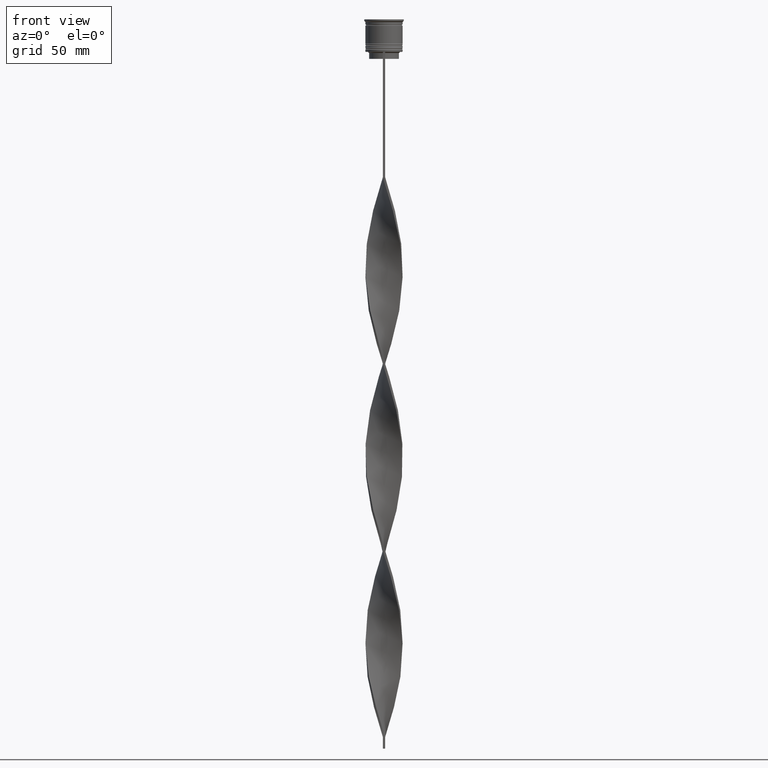
[diagram: clean part render]
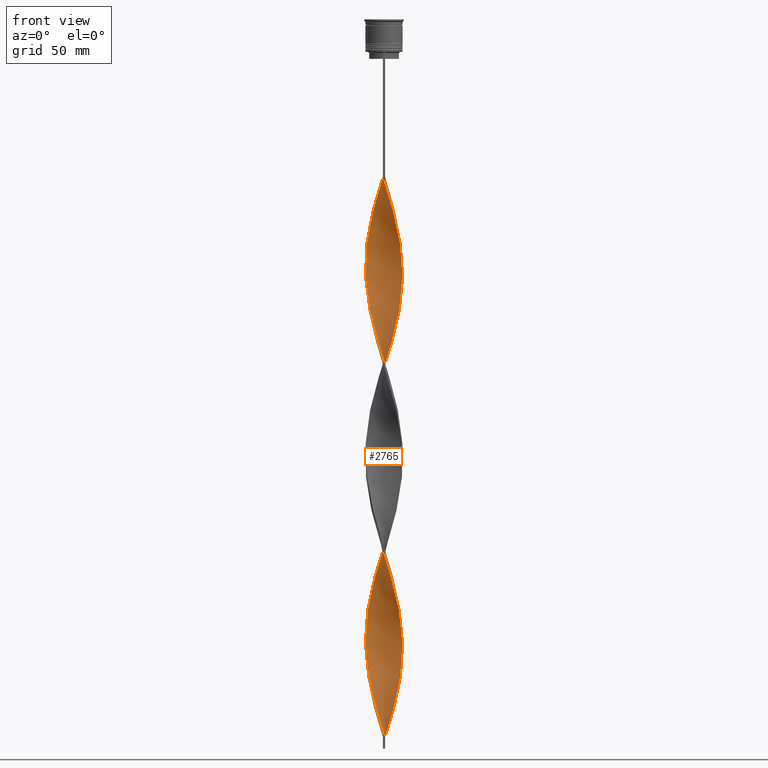
[diagram: same view with one face highlighted and labeled with its STEP entity id]
A machine part, front view. The second image highlights one B-rep face of the part: STEP entity #2765.
In plain terms, the highlighted face is a freeform B-spline surface patch.
Its self-contained STEP definition (entity closure, byte-faithful):
#2 = CARTESIAN_POINT ( 'NONE',  ( 0.5000000000000008882, 8.000000000000003553, -309.0000000000000000 ) ) ;
#4 = CARTESIAN_POINT ( 'NONE',  ( -1.996607696852002345, 7.762960627548706860, -156.3666666666666458 ) ) ;
#10 = CARTESIAN_POINT ( 'NONE',  ( -3.186420735822189432, -7.355047443376712124, -136.2833333333333314 ) ) ;
#36 = CARTESIAN_POINT ( 'NONE',  ( -2.361026126641883049, 7.685929837894279082, -74.02500000000000568 ) ) ;
#43 = CARTESIAN_POINT ( 'NONE',  ( -5.593028810685828134, 5.776330198885573530, -86.07500000000003126 ) ) ;
#53 = CARTESIAN_POINT ( 'NONE',  ( 6.010407640085657199, 5.303300858899108405, -288.9166666666666856 ) ) ;
#60 = CARTESIAN_POINT ( 'NONE',  ( 1.745319890619417169, 7.823289492240988352, -304.9833333333333485 ) ) ;
#72 = CARTESIAN_POINT ( 'NONE',  ( 7.605824193947272605, -2.607565948252400290, -178.4583333333333144 ) ) ;
#80 = CARTESIAN_POINT ( 'NONE',  ( -5.776330198885573530, -5.593028810685827246, -126.2416666666666742 ) ) ;
#98 = CARTESIAN_POINT ( 'NONE',  ( 6.766028581145813625, -4.297773521152310039, -172.4333333333333371 ) ) ;
#105 = CARTESIAN_POINT ( 'NONE',  ( 7.762960627548698866, -1.996607696852002345, -180.4666666666666686 ) ) ;
#114 = CARTESIAN_POINT ( 'NONE',  ( 7.920097061150121576, -1.385649445451606177, -182.4749999999999943 ) ) ;
#117 = CARTESIAN_POINT ( 'NONE',  ( 1.996607696852003233, -7.762960627548705084, -76.03333333333334565 ) ) ;
#120 = CARTESIAN_POINT ( 'NONE',  ( -0.4999999999999998890, 7.999999999999996447, -228.6666666666666856 ) ) ;
#124 = CARTESIAN_POINT ( 'NONE',  ( 1.385649445451609729, -7.920097061150129569, -74.02500000000000568 ) ) ;
#129 = CARTESIAN_POINT ( 'NONE',  ( -5.106790515527257490, 6.178243328853340266, -244.7333333333333201 ) ) ;
#132 = CARTESIAN_POINT ( 'NONE',  ( 2.947664213147157763, 7.453943633173757632, -140.3000000000000114 ) ) ;
#138 = CARTESIAN_POINT ( 'NONE',  ( 5.776330198885571754, 5.593028810685829910, -206.5750000000000171 ) ) ;
#150 = CARTESIAN_POINT ( 'NONE',  ( -3.765275523391983459, -7.104270692806151644, -294.9416666666667197 ) ) ;
#161 = CARTESIAN_POINT ( 'NONE',  ( 7.355047443376712124, -3.186420735822189876, -176.4499999999999886 ) ) ;
#174 = CARTESIAN_POINT ( 'NONE',  ( 5.303300858899110182, -6.010407640085657199, -88.08333333333334281 ) ) ;
#179 = CARTESIAN_POINT ( 'NONE',  ( -6.010407640085651870, 5.303300858899104853, -248.7500000000000000 ) ) ;
#182 = CARTESIAN_POINT ( 'NONE',  ( 6.178243328853345595, -5.106790515527261043, -92.09999999999999432 ) ) ;
#194 = CARTESIAN_POINT ( 'NONE',  ( -2.947664213147158652, -7.453943633173757632, -220.6333333333333542 ) ) ;
#215 = CARTESIAN_POINT ( 'NONE',  ( 7.823289492240990128, -1.745319890619416725, -264.8166666666667197 ) ) ;
#232 = CARTESIAN_POINT ( 'NONE',  ( -0.1296136545969484577, -8.039350853412310371, -306.9916666666667311 ) ) ;
#236 = CARTESIAN_POINT ( 'NONE',  ( -7.355047443376721006, -3.186420735822190764, -200.5500000000000114 ) ) ;
#252 = CARTESIAN_POINT ( 'NONE',  ( -4.077427260010561660, -6.901056943637172481, -216.6166666666666742 ) ) ;
#265 = CARTESIAN_POINT ( 'NONE',  ( 4.620552220368690399, 6.580156458821114995, -134.2750000000000341 ) ) ;
#273 = CARTESIAN_POINT ( 'NONE',  ( -8.000000000000003553, 0.5000000000000014433, -188.5000000000000000 ) ) ;
#295 = CARTESIAN_POINT ( 'NONE',  ( 4.620552220368685070, -6.580156458821110554, -162.3916666666666799 ) ) ;
#296 = CARTESIAN_POINT ( 'NONE',  ( -5.776330198885573530, -5.593028810685827246, -286.9083333333333599 ) ) ;
#303 = CARTESIAN_POINT ( 'NONE',  ( -1.745319890619418057, -7.823289492240988352, -224.6500000000000057 ) ) ;
#318 = CARTESIAN_POINT ( 'NONE',  ( -0.4999999999999998890, 7.999999999999996447, -68.00000000000000000 ) ) ;
#319 = CARTESIAN_POINT ( 'NONE',  ( -6.178243328853340266, -5.106790515527256602, -284.9000000000000341 ) ) ;
#324 = CARTESIAN_POINT ( 'NONE',  ( -2.361026126641883049, 7.685929837894279082, -74.02500000000000568 ) ) ;
#333 = ORIENTED_EDGE ( 'NONE', *, *, #1423, .T. ) ;
#336 = CARTESIAN_POINT ( 'NONE',  ( 7.605824193947282374, 2.607565948252398069, -118.2083333333333286 ) ) ;
#337 = CARTESIAN_POINT ( 'NONE',  ( 4.620552220368690399, 6.580156458821114995, -294.9416666666667197 ) ) ;
#349 = CARTESIAN_POINT ( 'NONE',  ( -6.580156458821110554, -4.620552220368685958, -122.2250000000000085 ) ) ;
#363 = CARTESIAN_POINT ( 'NONE',  ( 7.355047443376720118, 3.186420735822192096, -120.2166666666666686 ) ) ;
#364 = CARTESIAN_POINT ( 'NONE',  ( -1.129613654596947514, 7.960649146587686964, -70.00833333333335418 ) ) ;
#380 = CARTESIAN_POINT ( 'NONE',  ( -7.920097061150121576, 1.385649445451608841, -262.8083333333332803 ) ) ;
#385 = CARTESIAN_POINT ( 'NONE',  ( -7.685929837894279970, -2.361026126641882605, -114.1916666666666771 ) ) ;
#386 = EDGE_CURVE ( 'NONE', #3642, #2721, #1895, .T. ) ;
#401 = CARTESIAN_POINT ( 'NONE',  ( -7.823289492240983023, -1.745319890619414727, -272.8500000000000227 ) ) ;
#404 = CARTESIAN_POINT ( 'NONE',  ( 7.762960627548706860, 1.996607696852002789, -116.2000000000000028 ) ) ;
#409 = CARTESIAN_POINT ( 'NONE',  ( 6.427786469485475607, -4.830271518912641504, -170.4250000000000398 ) ) ;
#420 = CARTESIAN_POINT ( 'NONE',  ( 7.762960627548706860, 1.996607696852002789, -276.8666666666667311 ) ) ;
#424 = CARTESIAN_POINT ( 'NONE',  ( -6.427786469485477383, 4.830271518912638840, -250.7583333333333258 ) ) ;
#427 = CARTESIAN_POINT ( 'NONE',  ( 6.427786469485482712, 4.830271518912642392, -126.2416666666666600 ) ) ;
#429 = CARTESIAN_POINT ( 'NONE',  ( 8.000000000000003553, -0.5000000000000004441, -108.1666666666666714 ) ) ;
#432 = CARTESIAN_POINT ( 'NONE',  ( -7.605824193947275269, 2.607565948252396293, -258.7916666666666288 ) ) ;
#442 = CARTESIAN_POINT ( 'NONE',  ( 5.776330198885571754, 5.593028810685829910, -206.5750000000000171 ) ) ;
#447 = CARTESIAN_POINT ( 'NONE',  ( 8.000000000000003553, -0.5000000000000004441, -108.1666666666666714 ) ) ;
#452 = CARTESIAN_POINT ( 'NONE',  ( 3.765275523391981238, 7.104270692806152532, -214.6083333333333769 ) ) ;
#461 = CARTESIAN_POINT ( 'NONE',  ( 3.765275523391981682, 7.104270692806153420, -214.6083333333333769 ) ) ;
#470 = CARTESIAN_POINT ( 'NONE',  ( 4.077427260010555443, -6.901056943637167151, -160.3833333333333258 ) ) ;
#488 = CARTESIAN_POINT ( 'NONE',  ( 8.039350853412313924, 0.1296136545969474863, -110.1749999999999972 ) ) ;
#494 = CARTESIAN_POINT ( 'NONE',  ( -3.534302299652427592, 7.221957428453224637, -238.7083333333333144 ) ) ;
#506 = CARTESIAN_POINT ( 'NONE',  ( 1.996607696852003233, -7.762960627548705084, -236.6999999999999886 ) ) ;
#525 = CARTESIAN_POINT ( 'NONE',  ( -2.607565948252397625, 7.605824193947282374, -158.3750000000000284 ) ) ;
#530 = CARTESIAN_POINT ( 'NONE',  ( -5.303300858899104853, -6.010407640085650982, -288.9166666666666856 ) ) ;
#544 = CARTESIAN_POINT ( 'NONE',  ( 6.901056943637172481, -4.077427260010559884, -256.7833333333333599 ) ) ;
#563 = CARTESIAN_POINT ( 'NONE',  ( 7.355047443376720118, 3.186420735822192096, -280.8833333333333826 ) ) ;
#577 = CARTESIAN_POINT ( 'NONE',  ( -8.039350853412315701, -0.1296136545969501508, -190.5083333333333826 ) ) ;
#587 = CARTESIAN_POINT ( 'NONE',  ( -5.593028810685836127, -5.776330198885574418, -210.5916666666666686 ) ) ;
#596 = CARTESIAN_POINT ( 'NONE',  ( -4.830271518912641504, 6.427786469485482712, -166.4083333333333599 ) ) ;
#601 = CARTESIAN_POINT ( 'NONE',  ( -1.385649445451609285, -7.920097061150121576, -142.3083333333333371 ) ) ;
#625 = CARTESIAN_POINT ( 'NONE',  ( -6.427786469485477383, 4.830271518912638840, -90.09166666666666856 ) ) ;
#630 = CARTESIAN_POINT ( 'NONE',  ( -0.4999999999999998890, -8.000000000000003553, -68.00000000000000000 ) ) ;
#632 = CARTESIAN_POINT ( 'NONE',  ( -0.4999999999999998890, 7.999999999999996447, -68.00000000000000000 ) ) ;
#640 = CARTESIAN_POINT ( 'NONE',  ( -3.186420735822190764, 7.355047443376720118, -160.3833333333333258 ) ) ;
#644 = CARTESIAN_POINT ( 'NONE',  ( 8.039350853412313924, 0.1296136545969474863, -110.1750000000000114 ) ) ;
#645 = CARTESIAN_POINT ( 'NONE',  ( 2.947664213147154211, -7.453943633173752303, -156.3666666666666458 ) ) ;
#646 = CARTESIAN_POINT ( 'NONE',  ( -7.685929837894279970, -2.361026126641882605, -274.8583333333332916 ) ) ;
#666 = CARTESIAN_POINT ( 'NONE',  ( 1.129613654596949290, 7.960649146587693181, -306.9916666666667311 ) ) ;
#679 = CARTESIAN_POINT ( 'NONE',  ( -6.901056943637167151, -4.077427260010556331, -120.2166666666666686 ) ) ;
#695 = CARTESIAN_POINT ( 'NONE',  ( -4.830271518912639728, -6.427786469485477383, -130.2583333333333826 ) ) ;
#698 = CARTESIAN_POINT ( 'NONE',  ( 6.580156458821114995, -4.620552220368690399, -254.7749999999999773 ) ) ;
#702 = CARTESIAN_POINT ( 'NONE',  ( -1.129613654596947514, 7.960649146587686964, -70.00833333333335418 ) ) ;
#713 = CARTESIAN_POINT ( 'NONE',  ( -7.960649146587688740, -1.129613654596947070, -270.8416666666666401 ) ) ;
#715 = CARTESIAN_POINT ( 'NONE',  ( 7.221957428453231742, -3.534302299652430701, -98.12500000000002842 ) ) ;
#717 = CARTESIAN_POINT ( 'NONE',  ( -4.620552220368685958, 6.580156458821110554, -82.05833333333335133 ) ) ;
#728 = CARTESIAN_POINT ( 'NONE',  ( 3.186420735822190320, 7.355047443376712124, -216.6166666666666742 ) ) ;
#736 = CARTESIAN_POINT ( 'NONE',  ( 7.685929837894280858, 2.361026126641878609, -194.5250000000000341 ) ) ;
#743 = CARTESIAN_POINT ( 'NONE',  ( -7.960649146587693181, 1.129613654596953065, -186.4916666666667027 ) ) ;
#748 = CARTESIAN_POINT ( 'NONE',  ( -1.745319890619415171, 7.823289492240983023, -232.6833333333333371 ) ) ;
#751 = CARTESIAN_POINT ( 'NONE',  ( 2.361026126641885714, 7.685929837894286187, -142.3083333333333371 ) ) ;
#756 = CARTESIAN_POINT ( 'NONE',  ( -7.960649146587688740, -1.129613654596947070, -270.8416666666666401 ) ) ;
#768 = CARTESIAN_POINT ( 'NONE',  ( 6.901056943637168040, 4.077427260010555443, -200.5500000000000114 ) ) ;
#771 = CARTESIAN_POINT ( 'NONE',  ( 6.178243328853345595, -5.106790515527261043, -92.09999999999999432 ) ) ;
#776 = CARTESIAN_POINT ( 'NONE',  ( 6.901056943637168040, 4.077427260010555443, -200.5500000000000114 ) ) ;
#782 = CARTESIAN_POINT ( 'NONE',  ( 7.453943633173752303, 2.947664213147153767, -196.5333333333333314 ) ) ;
#791 = CARTESIAN_POINT ( 'NONE',  ( -2.947664213147154655, 7.453943633173751415, -236.6999999999999886 ) ) ;
#806 = CARTESIAN_POINT ( 'NONE',  ( -1.385649445451609285, -7.920097061150121576, -302.9750000000000227 ) ) ;
#811 = CARTESIAN_POINT ( 'NONE',  ( -7.104270692806160525, -3.765275523391982571, -202.5583333333333371 ) ) ;
#815 = ORIENTED_EDGE ( 'NONE', *, *, #1319, .F. ) ;
#817 = CARTESIAN_POINT ( 'NONE',  ( 5.106790515527256602, -6.178243328853340266, -164.3999999999999773 ) ) ;
#825 = EDGE_CURVE ( 'NONE', #3642, #3145, #1297, .T. ) ;
#831 = CARTESIAN_POINT ( 'NONE',  ( -7.979723957281220414, -0.7576315500242771783, -192.5166666666666799 ) ) ;
#839 = CARTESIAN_POINT ( 'NONE',  ( -6.427786469485481824, -4.830271518912644169, -206.5750000000000171 ) ) ;
#849 = CARTESIAN_POINT ( 'NONE',  ( -6.580156458821116772, 4.620552220368687735, -174.4416666666666629 ) ) ;
#857 = CARTESIAN_POINT ( 'NONE',  ( 0.4999999999999989453, -7.999999999999996447, -309.0000000000000000 ) ) ;
#865 = CARTESIAN_POINT ( 'NONE',  ( 6.010407640085657199, 5.303300858899108405, -128.2500000000000000 ) ) ;
#866 = CARTESIAN_POINT ( 'NONE',  ( 0.4999999999999989453, -7.999999999999996447, -309.0000000000000000 ) ) ;
#872 = CARTESIAN_POINT ( 'NONE',  ( -3.534302299652435142, -7.221957428453229966, -218.6250000000000568 ) ) ;
#888 = CARTESIAN_POINT ( 'NONE',  ( -7.453943633173757632, 2.947664213147157763, -180.4666666666666686 ) ) ;
#892 = CARTESIAN_POINT ( 'NONE',  ( 4.297773521152313592, -6.766028581145818954, -244.7333333333333201 ) ) ;
#896 = CARTESIAN_POINT ( 'NONE',  ( 4.830271518912642392, -6.427786469485481824, -86.07500000000003126 ) ) ;
#906 = CARTESIAN_POINT ( 'NONE',  ( -7.979723957281215085, 0.7576315500242779555, -104.1500000000000057 ) ) ;
#925 = CARTESIAN_POINT ( 'NONE',  ( -7.999999999999996447, -0.4999999999999993339, -108.1666666666666714 ) ) ;
#926 = CARTESIAN_POINT ( 'NONE',  ( -4.830271518912638840, -6.427786469485477383, -290.9250000000000682 ) ) ;
#933 = DIRECTION ( 'NONE',  ( 0.000000000000000000, 1.000000000000000000, 0.000000000000000000 ) ) ;
#955 = CARTESIAN_POINT ( 'NONE',  ( -4.077427260010556331, 6.901056943637167151, -80.05000000000001137 ) ) ;
#956 = CARTESIAN_POINT ( 'NONE',  ( -6.901056943637167151, -4.077427260010556331, -280.8833333333333826 ) ) ;
#958 = CARTESIAN_POINT ( 'NONE',  ( 7.453943633173757632, -2.947664213147156875, -260.8000000000000114 ) ) ;
#962 = CARTESIAN_POINT ( 'NONE',  ( -8.039350853412308595, 0.1296136545969479303, -106.1583333333333456 ) ) ;
#976 = CARTESIAN_POINT ( 'NONE',  ( 0.5000000000000008882, 8.000000000000003553, -309.0000000000000000 ) ) ;
#981 = CARTESIAN_POINT ( 'NONE',  ( -7.453943633173752303, -2.947664213147154655, -116.2000000000000028 ) ) ;
#994 = CARTESIAN_POINT ( 'NONE',  ( -2.947664213147154655, 7.453943633173751415, -76.03333333333334565 ) ) ;
#998 = CARTESIAN_POINT ( 'NONE',  ( 8.000000000000003553, -0.5000000000000004441, -268.8333333333333712 ) ) ;
#1006 = CARTESIAN_POINT ( 'NONE',  ( -7.221957428453224637, -3.534302299652427148, -118.2083333333333286 ) ) ;
#1021 = CARTESIAN_POINT ( 'NONE',  ( -2.361026126641883049, 7.685929837894279082, -234.6916666666666629 ) ) ;
#1028 = CARTESIAN_POINT ( 'NONE',  ( -7.605824193947281486, -2.607565948252400290, -198.5416666666666856 ) ) ;
#1034 = CARTESIAN_POINT ( 'NONE',  ( 5.593028810685833463, 5.776330198885578859, -290.9250000000000682 ) ) ;
#1038 = CARTESIAN_POINT ( 'NONE',  ( -7.685929837894279970, -2.361026126641882605, -274.8583333333332916 ) ) ;
#1044 = CARTESIAN_POINT ( 'NONE',  ( -7.920097061150122464, 1.385649445451608619, -262.8083333333333371 ) ) ;
#1055 = CARTESIAN_POINT ( 'NONE',  ( 0.1296136545969529541, 8.039350853412310371, -226.6583333333333883 ) ) ;
#1057 = CARTESIAN_POINT ( 'NONE',  ( 4.077427260010560772, 6.901056943637172481, -136.2833333333333314 ) ) ;
#1063 = CARTESIAN_POINT ( 'NONE',  ( 3.186420735822190320, 7.355047443376712124, -216.6166666666666742 ) ) ;
#1079 = CARTESIAN_POINT ( 'NONE',  ( 6.178243328853342042, 5.106790515527255714, -204.5666666666666629 ) ) ;
#1082 = CARTESIAN_POINT ( 'NONE',  ( 6.766028581145818954, 4.297773521152312703, -124.2333333333333343 ) ) ;
#1086 = CARTESIAN_POINT ( 'NONE',  ( 7.960649146587686964, 1.129613654596949512, -190.5083333333333542 ) ) ;
#1095 = CARTESIAN_POINT ( 'NONE',  ( -7.104270692806151644, 3.765275523391983459, -254.7749999999999488 ) ) ;
#1101 = CARTESIAN_POINT ( 'NONE',  ( -0.4999999999999998890, -8.000000000000003553, -68.00000000000000000 ) ) ;
#1105 = CARTESIAN_POINT ( 'NONE',  ( 7.605824193947273493, -2.607565948252400290, -178.4583333333333428 ) ) ;
#1118 = CARTESIAN_POINT ( 'NONE',  ( -2.361026126641883049, -7.685929837894287076, -222.6416666666667084 ) ) ;
#1124 = CARTESIAN_POINT ( 'NONE',  ( -7.355047443376712124, 3.186420735822188988, -256.7833333333333599 ) ) ;
#1143 = CARTESIAN_POINT ( 'NONE',  ( 6.178243328853345595, -5.106790515527261043, -252.7666666666667084 ) ) ;
#1149 = CARTESIAN_POINT ( 'NONE',  ( -3.186420735822189432, -7.355047443376712124, -296.9499999999999886 ) ) ;
#1151 = CARTESIAN_POINT ( 'NONE',  ( -6.766028581145818954, -4.297773521152311815, -204.5666666666666629 ) ) ;
#1155 = CARTESIAN_POINT ( 'NONE',  ( 1.745319890619417169, 7.823289492240988352, -144.3166666666666629 ) ) ;
#1161 = CARTESIAN_POINT ( 'NONE',  ( -7.605824193947280598, -2.607565948252400290, -198.5416666666667140 ) ) ;
#1180 = CARTESIAN_POINT ( 'NONE',  ( 8.039350853412313924, 0.1296136545969474863, -270.8416666666666401 ) ) ;
#1194 = CARTESIAN_POINT ( 'NONE',  ( -6.178243328853344707, 5.106790515527261931, -172.4333333333333371 ) ) ;
#1198 = CARTESIAN_POINT ( 'NONE',  ( -1.385649445451609063, 7.920097061150128681, -154.3583333333332916 ) ) ;
#1221 = CARTESIAN_POINT ( 'NONE',  ( 1.745319890619414060, -7.823289492240984799, -152.3499999999999943 ) ) ;
#1227 = CARTESIAN_POINT ( 'NONE',  ( -4.077427260010561660, -6.901056943637172481, -216.6166666666666742 ) ) ;
#1228 = CARTESIAN_POINT ( 'NONE',  ( 0.5000000000000002220, 2.666666666666670515, -309.0000000000000000 ) ) ;
#1240 = CARTESIAN_POINT ( 'NONE',  ( 7.104270692806158749, 3.765275523391986123, -282.8916666666667084 ) ) ;
#1248 = CARTESIAN_POINT ( 'NONE',  ( -4.297773521152310039, -6.766028581145813625, -132.2666666666666799 ) ) ;
#1256 = CARTESIAN_POINT ( 'NONE',  ( 7.823289492240990128, -1.745319890619416725, -104.1500000000000057 ) ) ;
#1261 = CARTESIAN_POINT ( 'NONE',  ( -2.607565948252396737, -7.605824193947274381, -138.2916666666667140 ) ) ;
#1262 = CARTESIAN_POINT ( 'NONE',  ( 0.4999999999999989453, -7.999999999999996447, -309.0000000000000000 ) ) ;
#1273 = CARTESIAN_POINT ( 'NONE',  ( -7.999999999999996447, -0.4999999999999993339, -108.1666666666666714 ) ) ;
#1274 = CARTESIAN_POINT ( 'NONE',  ( 2.361026126641885714, 7.685929837894286187, -302.9750000000000227 ) ) ;
#1285 = CARTESIAN_POINT ( 'NONE',  ( 6.766028581145818954, 4.297773521152312703, -284.9000000000000341 ) ) ;
#1290 = CARTESIAN_POINT ( 'NONE',  ( -7.355047443376712124, 3.186420735822188988, -96.11666666666667425 ) ) ;
#1297 =( BOUNDED_CURVE ( )  B_SPLINE_CURVE ( 2, ( #2371, #2078, #3578, #124, #2035, #3302, #2010, #2704, #1374, #896, #2427, #3437, #182, #2804, #1821, #3733, #2725, #2098, #1256, #3482, #429, #644, #3166, #3496, #1912, #336, #363, #2591, #3082, #2815, #865, #1547, #3402, #265, #3242, #2218, #3092, #2160, #1155, #2764, #1938, #3406, #3786, #2227, #4, #1596, #640, #3492, #3719, #596, #1505, #4053, #1194, #3424, #1551, #1847, #1528, #2817, #1541, #743, #3155, #2530, #1951, #1968, #2291, #1028, #3556, #2387, #1151, #839, #2577, #587, #4088, #3127, #1227, #3152, #1879, #2505, #303, #1565, #4109, #1897, #1586, #3823, #3753, #2800, #4023, #2214, #892, #1818, #3454, #2001, #2861, #698, #2549, #3820, #958, #1635, #2236, #3501, #998, #2617, #2886, #3515, #420, #3206, #3245, #2901, #1285, #2941, #3855, #1034, #2963, #2650, #1648, #1381, #2666, #1274, #60, #3570, #3506 ),
 .UNSPECIFIED., .F., .T. ) 
 B_SPLINE_CURVE_WITH_KNOTS ( ( 3, 2, 2, 2, 2, 2, 2, 2, 2, 2, 2, 2, 2, 2, 2, 2, 2, 2, 2, 2, 2, 2, 2, 2, 2, 2, 2, 2, 2, 2, 2, 2, 2, 2, 2, 2, 2, 2, 2, 2, 2, 2, 2, 2, 2, 2, 2, 2, 2, 2, 2, 2, 2, 2, 2, 2, 2, 2, 2, 2, 3 ),
 ( 0.000000000000000000, 0.01250000000000000243, 0.02500000000000000486, 0.03749999999999999861, 0.05000000000000000971, 0.06250000000000000000, 0.07499999999999999722, 0.08749999999999998057, 0.1000000000000000194, 0.1125000000000000028, 0.1250000000000000000, 0.1375000000000000111, 0.1499999999999999944, 0.1625000000000000056, 0.1749999999999999611, 0.1875000000000000000, 0.2000000000000000389, 0.2124999999999999944, 0.2250000000000000056, 0.2374999999999999611, 0.2500000000000000000, 0.2625000000000000111, 0.2750000000000000222, 0.2874999999999999778, 0.2999999999999999889, 0.3125000000000000000, 0.3250000000000000111, 0.3375000000000000777, 0.3499999999999999223, 0.3624999999999999889, 0.3750000000000000000, 0.3875000000000000111, 0.4000000000000000777, 0.4124999999999999223, 0.4249999999999999889, 0.4375000000000000000, 0.4500000000000000111, 0.4625000000000000777, 0.4749999999999999223, 0.4874999999999999889, 0.5000000000000000000, 0.5124999999999999556, 0.5250000000000000222, 0.5374999999999999778, 0.5500000000000000444, 0.5625000000000000000, 0.5749999999999999556, 0.5875000000000000222, 0.5999999999999999778, 0.6125000000000000444, 0.6250000000000000000, 0.6374999999999999556, 0.6500000000000000222, 0.6624999999999999778, 0.6750000000000001554, 0.6875000000000000000, 0.6999999999999998446, 0.7125000000000000222, 0.7249999999999999778, 0.7375000000000001554, 0.7500000000000000000 ),
 .UNSPECIFIED. ) 
 CURVE ( )  GEOMETRIC_REPRESENTATION_ITEM ( )  RATIONAL_B_SPLINE_CURVE ( ( 1.000000000000000000, 0.9969173337331279638, 1.000000000000000000, 0.9969173337331279638, 1.000000000000000000, 0.9969173337331279638, 1.000000000000000000, 0.9969173337331279638, 1.000000000000000000, 0.9969173337331279638, 1.000000000000000000, 0.9969173337331279638, 1.000000000000000000, 0.9969173337331279638, 1.000000000000000000, 0.9969173337331279638, 1.000000000000000000, 0.9969173337331279638, 1.000000000000000000, 0.9969173337331279638, 1.000000000000000000, 0.9969173337331279638, 1.000000000000000000, 0.9969173337331279638, 1.000000000000000000, 0.9969173337331279638, 1.000000000000000000, 0.9969173337331279638, 1.000000000000000000, 0.9969173337331279638, 1.000000000000000000, 0.9969173337331279638, 1.000000000000000000, 0.9969173337331279638, 1.000000000000000000, 0.9969173337331279638, 1.000000000000000000, 0.9969173337331279638, 1.000000000000000000, 0.9969173337331279638, 1.000000000000000000, 0.9969173337331279638, 1.000000000000000000, 0.9969173337331279638, 1.000000000000000000, 0.9969173337331279638, 1.000000000000000000, 0.9969173337331279638, 1.000000000000000000, 0.9969173337331279638, 1.000000000000000000, 0.9969173337331279638, 1.000000000000000000, 0.9969173337331279638, 1.000000000000000000, 0.9969173337331279638, 1.000000000000000000, 0.9969173337331279638, 1.000000000000000000, 0.9969173337331279638, 1.000000000000000000, 0.9969173337331279638, 1.000000000000000000, 0.9969173337331279638, 1.000000000000000000, 0.9969173337331279638, 1.000000000000000000, 0.9969173337331279638, 1.000000000000000000, 0.9969173337331279638, 1.000000000000000000, 0.9969173337331279638, 1.000000000000000000, 0.9969173337331279638, 1.000000000000000000, 0.9969173337331279638, 1.000000000000000000, 0.9969173337331279638, 1.000000000000000000, 0.9969173337331279638, 1.000000000000000000, 0.9969173337331279638, 1.000000000000000000, 0.9969173337331279638, 1.000000000000000000, 0.9969173337331279638, 1.000000000000000000, 0.9969173337331279638, 1.000000000000000000, 0.9969173337331279638, 1.000000000000000000, 0.9969173337331279638, 1.000000000000000000, 0.9969173337331279638, 1.000000000000000000, 0.9969173337331279638, 1.000000000000000000, 0.9969173337331279638, 1.000000000000000000, 0.9969173337331279638, 1.000000000000000000, 0.9969173337331279638, 1.000000000000000000, 0.9969173337331279638, 1.000000000000000000, 0.9969173337331279638, 1.000000000000000000, 0.9969173337331279638, 1.000000000000000000, 0.9969173337331279638, 1.000000000000000000, 0.9969173337331279638, 1.000000000000000000, 0.9969173337331279638, 1.000000000000000000, 0.9969173337331279638, 1.000000000000000000, 0.9969173337331279638, 1.000000000000000000, 0.9969173337331279638, 1.000000000000000000 ) ) 
 REPRESENTATION_ITEM ( '' )  );
#1298 = CARTESIAN_POINT ( 'NONE',  ( -4.077427260010556331, 6.901056943637167151, -80.05000000000001137 ) ) ;
#1311 = CARTESIAN_POINT ( 'NONE',  ( -1.745319890619415171, 7.823289492240983023, -72.01666666666667993 ) ) ;
#1319 = EDGE_CURVE ( 'NONE', #3145, #1339, #3757, .T. ) ;
#1327 = CARTESIAN_POINT ( 'NONE',  ( -0.4999999999999998890, 7.999999999999996447, -228.6666666666666856 ) ) ;
#1339 = VERTEX_POINT ( 'NONE', #4089 ) ;
#1348 = CARTESIAN_POINT ( 'NONE',  ( 6.580156458821112331, 4.620552220368682406, -202.5583333333333371 ) ) ;
#1354 = CARTESIAN_POINT ( 'NONE',  ( 2.947664213147154211, -7.453943633173752303, -156.3666666666666458 ) ) ;
#1366 = CARTESIAN_POINT ( 'NONE',  ( -5.593028810685828134, 5.776330198885573530, -246.7416666666666742 ) ) ;
#1369 = CARTESIAN_POINT ( 'NONE',  ( 5.593028810685833463, 5.776330198885578859, -130.2583333333333826 ) ) ;
#1373 = CARTESIAN_POINT ( 'NONE',  ( -8.039350853412308595, 0.1296136545969479303, -266.8249999999999886 ) ) ;
#1374 = CARTESIAN_POINT ( 'NONE',  ( 4.297773521152313592, -6.766028581145818954, -84.06666666666667709 ) ) ;
#1381 = CARTESIAN_POINT ( 'NONE',  ( 3.534302299652431145, 7.221957428453231742, -298.9583333333333712 ) ) ;
#1384 = CARTESIAN_POINT ( 'NONE',  ( 7.104270692806154308, -3.765275523391980794, -174.4416666666666629 ) ) ;
#1387 = CARTESIAN_POINT ( 'NONE',  ( 1.129613654596949290, 7.960649146587693181, -146.3250000000000171 ) ) ;
#1394 = CARTESIAN_POINT ( 'NONE',  ( 4.830271518912641504, 6.427786469485474719, -210.5916666666666686 ) ) ;
#1408 = CARTESIAN_POINT ( 'NONE',  ( 7.823289492240984799, 1.745319890619413616, -192.5166666666666799 ) ) ;
#1412 = CARTESIAN_POINT ( 'NONE',  ( 7.960649146587693181, -1.129613654596948624, -106.1583333333333456 ) ) ;
#1416 = CARTESIAN_POINT ( 'NONE',  ( 8.039350853412308595, -0.1296136545969525100, -186.4916666666667027 ) ) ;
#1423 = EDGE_CURVE ( 'NONE', #2721, #1339, #3862, .T. ) ;
#1438 = CARTESIAN_POINT ( 'NONE',  ( 5.593028810685827246, -5.776330198885574418, -166.4083333333333599 ) ) ;
#1449 = CARTESIAN_POINT ( 'NONE',  ( 4.830271518912643280, -6.427786469485482712, -246.7416666666666742 ) ) ;
#1472 = CARTESIAN_POINT ( 'NONE',  ( -5.303300858899108405, 6.010407640085658088, -168.4166666666666572 ) ) ;
#1478 = CARTESIAN_POINT ( 'NONE',  ( -3.765275523391983015, -7.104270692806150755, -294.9416666666667197 ) ) ;
#1486 = CARTESIAN_POINT ( 'NONE',  ( -1.996607696852002345, -7.762960627548698866, -300.9666666666666401 ) ) ;
#1489 = CARTESIAN_POINT ( 'NONE',  ( 7.979723957281222191, 0.7576315500242781775, -272.8500000000000227 ) ) ;
#1503 = CARTESIAN_POINT ( 'NONE',  ( -0.7576315500242785106, -7.979723957281213309, -304.9833333333333485 ) ) ;
#1505 = CARTESIAN_POINT ( 'NONE',  ( -5.303300858899108405, 6.010407640085658088, -168.4166666666666572 ) ) ;
#1509 = CARTESIAN_POINT ( 'NONE',  ( -1.129613654596953509, -7.960649146587693181, -226.6583333333333883 ) ) ;
#1528 = CARTESIAN_POINT ( 'NONE',  ( -7.453943633173757632, 2.947664213147157763, -180.4666666666666686 ) ) ;
#1533 = CARTESIAN_POINT ( 'NONE',  ( -0.1296136545969484577, -8.039350853412310371, -146.3250000000000171 ) ) ;
#1541 = CARTESIAN_POINT ( 'NONE',  ( -7.823289492240988352, 1.745319890619417613, -184.4833333333333201 ) ) ;
#1547 = CARTESIAN_POINT ( 'NONE',  ( 5.593028810685833463, 5.776330198885578859, -130.2583333333333542 ) ) ;
#1551 = CARTESIAN_POINT ( 'NONE',  ( -6.901056943637172481, 4.077427260010560772, -176.4499999999999886 ) ) ;
#1555 = CARTESIAN_POINT ( 'NONE',  ( 5.106790515527256602, -6.178243328853340266, -164.3999999999999773 ) ) ;
#1565 = CARTESIAN_POINT ( 'NONE',  ( -1.129613654596953509, -7.960649146587693181, -226.6583333333333883 ) ) ;
#1566 = CARTESIAN_POINT ( 'NONE',  ( -3.186420735822189432, -7.355047443376712124, -136.2833333333333314 ) ) ;
#1578 = CARTESIAN_POINT ( 'NONE',  ( -7.221957428453224637, -3.534302299652427148, -118.2083333333333144 ) ) ;
#1586 = CARTESIAN_POINT ( 'NONE',  ( 0.7576315500242786216, -7.979723957281222191, -232.6833333333333371 ) ) ;
#1587 = CARTESIAN_POINT ( 'NONE',  ( -3.534302299652427592, 7.221957428453224637, -78.04166666666667140 ) ) ;
#1596 = CARTESIAN_POINT ( 'NONE',  ( -2.607565948252397625, 7.605824193947283263, -158.3750000000000284 ) ) ;
#1602 = CARTESIAN_POINT ( 'NONE',  ( -6.901056943637167151, -4.077427260010556331, -120.2166666666666686 ) ) ;
#1616 = CARTESIAN_POINT ( 'NONE',  ( -5.303300858899104853, -6.010407640085650982, -128.2500000000000000 ) ) ;
#1632 = CARTESIAN_POINT ( 'NONE',  ( 1.745319890619417169, 7.823289492240988352, -304.9833333333333485 ) ) ;
#1635 = CARTESIAN_POINT ( 'NONE',  ( 7.685929837894286187, -2.361026126641885270, -262.8083333333333371 ) ) ;
#1641 = CARTESIAN_POINT ( 'NONE',  ( -5.106790515527257490, 6.178243328853340266, -84.06666666666667709 ) ) ;
#1648 = CARTESIAN_POINT ( 'NONE',  ( 4.077427260010560772, 6.901056943637172481, -296.9499999999999886 ) ) ;
#1651 = CARTESIAN_POINT ( 'NONE',  ( 6.010407640085650982, -5.303300858899105741, -168.4166666666666572 ) ) ;
#1655 = CARTESIAN_POINT ( 'NONE',  ( -6.427786469485477383, 4.830271518912637951, -90.09166666666666856 ) ) ;
#1665 = CARTESIAN_POINT ( 'NONE',  ( -7.453943633173752303, -2.947664213147154655, -276.8666666666667311 ) ) ;
#1677 = CARTESIAN_POINT ( 'NONE',  ( 7.920097061150122464, -1.385649445451605954, -182.4749999999999943 ) ) ;
#1693 = CARTESIAN_POINT ( 'NONE',  ( -4.830271518912639728, -6.427786469485477383, -290.9250000000000682 ) ) ;
#1695 = CARTESIAN_POINT ( 'NONE',  ( -0.4999999999999998890, 7.999999999999996447, -68.00000000000000000 ) ) ;
#1699 = CARTESIAN_POINT ( 'NONE',  ( 6.580156458821112331, 4.620552220368682406, -202.5583333333333371 ) ) ;
#1702 =( BOUNDED_SURFACE ( )  B_SPLINE_SURFACE ( 1, 2, ( 
 ( #1101, #2320, #2969, #3293, #117, #2984, #3888, #3330, #3948, #2301, #174, #2002, #771, #3004, #3566, #715, #3610, #2046, #2656, #1412, #447, #488, #3905, #3251, #404, #2698, #3274, #3965, #1082, #427, #2364, #1369, #2380, #3925, #1057, #2342, #132, #751, #1712, #1387, #2675, #3628, #3645, #1198, #2419, #525, #3664, #2455, #3704, #2437, #1472, #3980, #3748, #849, #3428, #1790, #888, #1831, #1813, #2398, #273, #577, #831, #2718, #3102, #1161, #236, #811, #1850, #4057, #2761, #2171, #2127, #3117, #252, #872, #194, #1118, #3724, #1509, #2479, #3368, #2089, #3353, #506, #3046, #2795, #1775, #2738, #1449, #4001, #3386, #1143, #4036, #544, #3687, #2108, #3065, #215, #3087, #4017, #1180, #1489, #2779, #2152, #3411, #563, #1240, #2517, #2905, #53, #2569, #3476, #337, #3184, #2498, #2210, #3817, #1632, #666, #976 ),
 ( #318, #364, #1311, #36, #994, #3769, #955, #2882, #1936, #2592, #2838, #625, #2232, #1891, #1290, #3449, #2275, #3790, #906, #2250, #925, #3167, #3860, #3546, #3836, #1578, #1602, #3520, #2190, #2857, #3497, #695, #3211, #1959, #10, #1261, #3232, #601, #2545, #1533, #2821, #4079, #1221, #1870, #645, #3142, #1913, #295, #1555, #4100, #1651, #3640, #98, #1384, #2361, #72, #2926, #114, #2670, #3269, #3946, #3923, #1408, #3248, #782, #2060, #768, #1348, #1079, #442, #2614, #1709, #2694, #461, #728, #1976, #2635, #3605, #3961, #1055, #1327, #2025, #748, #1021, #2999, #3902, #2318, #3884, #129, #1366, #2653, #424, #2299, #1095, #2337, #2377, #3584, #380, #3624, #3291, #3564, #713, #401, #1038, #1665, #2041, #2966, #2981, #2945, #1996, #1726, #1693, #3307, #150, #2790, #3716, #1486, #806, #1503, #232, #866 ) ),
 .UNSPECIFIED., .F., .F., .F. ) 
 B_SPLINE_SURFACE_WITH_KNOTS ( ( 2, 2 ),
 ( 3, 2, 2, 2, 2, 2, 2, 2, 2, 2, 2, 2, 2, 2, 2, 2, 2, 2, 2, 2, 2, 2, 2, 2, 2, 2, 2, 2, 2, 2, 2, 2, 2, 2, 2, 2, 2, 2, 2, 2, 2, 2, 2, 2, 2, 2, 2, 2, 2, 2, 2, 2, 2, 2, 2, 2, 2, 2, 2, 2, 3 ),
 ( 0.000000000000000000, 1.000000000000000000 ),
 ( 0.000000000000000000, 0.01250000000000000069, 0.02500000000000000139, 0.03749999999999999861, 0.05000000000000000278, 0.06250000000000000000, 0.07499999999999999722, 0.08749999999999999445, 0.1000000000000000056, 0.1125000000000000028, 0.1250000000000000000, 0.1375000000000000111, 0.1499999999999999944, 0.1625000000000000056, 0.1749999999999999889, 0.1875000000000000000, 0.2000000000000000111, 0.2124999999999999944, 0.2250000000000000056, 0.2374999999999999889, 0.2500000000000000000, 0.2625000000000000111, 0.2750000000000000222, 0.2874999999999999778, 0.2999999999999999889, 0.3125000000000000000, 0.3250000000000000111, 0.3375000000000000222, 0.3499999999999999778, 0.3624999999999999889, 0.3750000000000000000, 0.3875000000000000111, 0.4000000000000000222, 0.4124999999999999778, 0.4249999999999999889, 0.4375000000000000000, 0.4500000000000000111, 0.4625000000000000222, 0.4749999999999999778, 0.4874999999999999889, 0.5000000000000000000, 0.5124999999999999556, 0.5250000000000000222, 0.5374999999999999778, 0.5500000000000000444, 0.5625000000000000000, 0.5749999999999999556, 0.5875000000000000222, 0.5999999999999999778, 0.6125000000000000444, 0.6250000000000000000, 0.6374999999999999556, 0.6500000000000000222, 0.6624999999999999778, 0.6750000000000000444, 0.6875000000000000000, 0.6999999999999999556, 0.7125000000000000222, 0.7249999999999999778, 0.7375000000000000444, 0.7500000000000000000 ),
 .UNSPECIFIED. ) 
 GEOMETRIC_REPRESENTATION_ITEM ( )  RATIONAL_B_SPLINE_SURFACE ( (
 ( 1.000000000000000000, 0.9969173337331279638, 1.000000000000000000, 0.9969173337331279638, 1.000000000000000000, 0.9969173337331279638, 1.000000000000000000, 0.9969173337331279638, 1.000000000000000000, 0.9969173337331279638, 1.000000000000000000, 0.9969173337331279638, 1.000000000000000000, 0.9969173337331279638, 1.000000000000000000, 0.9969173337331279638, 1.000000000000000000, 0.9969173337331279638, 1.000000000000000000, 0.9969173337331279638, 1.000000000000000000, 0.9969173337331279638, 1.000000000000000000, 0.9969173337331279638, 1.000000000000000000, 0.9969173337331279638, 1.000000000000000000, 0.9969173337331279638, 1.000000000000000000, 0.9969173337331279638, 1.000000000000000000, 0.9969173337331279638, 1.000000000000000000, 0.9969173337331279638, 1.000000000000000000, 0.9969173337331279638, 1.000000000000000000, 0.9969173337331279638, 1.000000000000000000, 0.9969173337331279638, 1.000000000000000000, 0.9969173337331279638, 1.000000000000000000, 0.9969173337331279638, 1.000000000000000000, 0.9969173337331279638, 1.000000000000000000, 0.9969173337331279638, 1.000000000000000000, 0.9969173337331279638, 1.000000000000000000, 0.9969173337331279638, 1.000000000000000000, 0.9969173337331279638, 1.000000000000000000, 0.9969173337331279638, 1.000000000000000000, 0.9969173337331279638, 1.000000000000000000, 0.9969173337331279638, 1.000000000000000000, 0.9969173337331279638, 1.000000000000000000, 0.9969173337331279638, 1.000000000000000000, 0.9969173337331279638, 1.000000000000000000, 0.9969173337331279638, 1.000000000000000000, 0.9969173337331279638, 1.000000000000000000, 0.9969173337331279638, 1.000000000000000000, 0.9969173337331279638, 1.000000000000000000, 0.9969173337331279638, 1.000000000000000000, 0.9969173337331279638, 1.000000000000000000, 0.9969173337331279638, 1.000000000000000000, 0.9969173337331279638, 1.000000000000000000, 0.9969173337331279638, 1.000000000000000000, 0.9969173337331279638, 1.000000000000000000, 0.9969173337331279638, 1.000000000000000000, 0.9969173337331279638, 1.000000000000000000, 0.9969173337331279638, 1.000000000000000000, 0.9969173337331279638, 1.000000000000000000, 0.9969173337331279638, 1.000000000000000000, 0.9969173337331279638, 1.000000000000000000, 0.9969173337331279638, 1.000000000000000000, 0.9969173337331279638, 1.000000000000000000, 0.9969173337331279638, 1.000000000000000000, 0.9969173337331279638, 1.000000000000000000, 0.9969173337331279638, 1.000000000000000000, 0.9969173337331279638, 1.000000000000000000, 0.9969173337331279638, 1.000000000000000000, 0.9969173337331279638, 1.000000000000000000, 0.9969173337331279638, 1.000000000000000000, 0.9969173337331279638, 1.000000000000000000, 0.9969173337331279638, 1.000000000000000000),
 ( 1.000000000000000000, 0.9969173337331279638, 1.000000000000000000, 0.9969173337331279638, 1.000000000000000000, 0.9969173337331279638, 1.000000000000000000, 0.9969173337331279638, 1.000000000000000000, 0.9969173337331279638, 1.000000000000000000, 0.9969173337331279638, 1.000000000000000000, 0.9969173337331279638, 1.000000000000000000, 0.9969173337331279638, 1.000000000000000000, 0.9969173337331279638, 1.000000000000000000, 0.9969173337331279638, 1.000000000000000000, 0.9969173337331279638, 1.000000000000000000, 0.9969173337331279638, 1.000000000000000000, 0.9969173337331279638, 1.000000000000000000, 0.9969173337331279638, 1.000000000000000000, 0.9969173337331279638, 1.000000000000000000, 0.9969173337331279638, 1.000000000000000000, 0.9969173337331279638, 1.000000000000000000, 0.9969173337331279638, 1.000000000000000000, 0.9969173337331279638, 1.000000000000000000, 0.9969173337331279638, 1.000000000000000000, 0.9969173337331279638, 1.000000000000000000, 0.9969173337331279638, 1.000000000000000000, 0.9969173337331279638, 1.000000000000000000, 0.9969173337331279638, 1.000000000000000000, 0.9969173337331279638, 1.000000000000000000, 0.9969173337331279638, 1.000000000000000000, 0.9969173337331279638, 1.000000000000000000, 0.9969173337331279638, 1.000000000000000000, 0.9969173337331279638, 1.000000000000000000, 0.9969173337331279638, 1.000000000000000000, 0.9969173337331279638, 1.000000000000000000, 0.9969173337331279638, 1.000000000000000000, 0.9969173337331279638, 1.000000000000000000, 0.9969173337331279638, 1.000000000000000000, 0.9969173337331279638, 1.000000000000000000, 0.9969173337331279638, 1.000000000000000000, 0.9969173337331279638, 1.000000000000000000, 0.9969173337331279638, 1.000000000000000000, 0.9969173337331279638, 1.000000000000000000, 0.9969173337331279638, 1.000000000000000000, 0.9969173337331279638, 1.000000000000000000, 0.9969173337331279638, 1.000000000000000000, 0.9969173337331279638, 1.000000000000000000, 0.9969173337331279638, 1.000000000000000000, 0.9969173337331279638, 1.000000000000000000, 0.9969173337331279638, 1.000000000000000000, 0.9969173337331279638, 1.000000000000000000, 0.9969173337331279638, 1.000000000000000000, 0.9969173337331279638, 1.000000000000000000, 0.9969173337331279638, 1.000000000000000000, 0.9969173337331279638, 1.000000000000000000, 0.9969173337331279638, 1.000000000000000000, 0.9969173337331279638, 1.000000000000000000, 0.9969173337331279638, 1.000000000000000000, 0.9969173337331279638, 1.000000000000000000, 0.9969173337331279638, 1.000000000000000000, 0.9969173337331279638, 1.000000000000000000, 0.9969173337331279638, 1.000000000000000000, 0.9969173337331279638, 1.000000000000000000, 0.9969173337331279638, 1.000000000000000000) ) ) 
 REPRESENTATION_ITEM ( '' )  SURFACE ( )  );
#1709 = CARTESIAN_POINT ( 'NONE',  ( 4.830271518912642392, 6.427786469485474719, -210.5916666666666686 ) ) ;
#1712 = CARTESIAN_POINT ( 'NONE',  ( 1.745319890619417169, 7.823289492240988352, -144.3166666666666629 ) ) ;
#1717 = CARTESIAN_POINT ( 'NONE',  ( 2.607565948252400734, 7.605824193947273493, -218.6250000000000284 ) ) ;
#1726 = CARTESIAN_POINT ( 'NONE',  ( -5.303300858899104853, -6.010407640085650982, -288.9166666666666856 ) ) ;
#1738 = CARTESIAN_POINT ( 'NONE',  ( 1.745319890619414060, -7.823289492240984799, -152.3499999999999943 ) ) ;
#1756 = FACE_OUTER_BOUND ( 'NONE', #2754, .T. ) ;
#1763 = CARTESIAN_POINT ( 'NONE',  ( -6.427786469485477383, 4.830271518912637951, -250.7583333333332973 ) ) ;
#1775 = CARTESIAN_POINT ( 'NONE',  ( 3.765275523391986123, -7.104270692806158749, -242.7250000000000227 ) ) ;
#1790 = CARTESIAN_POINT ( 'NONE',  ( -7.221957428453229966, 3.534302299652434698, -178.4583333333333144 ) ) ;
#1813 = CARTESIAN_POINT ( 'NONE',  ( -7.823289492240988352, 1.745319890619417613, -184.4833333333333201 ) ) ;
#1818 = CARTESIAN_POINT ( 'NONE',  ( 4.830271518912642392, -6.427786469485481824, -246.7416666666667027 ) ) ;
#1821 = CARTESIAN_POINT ( 'NONE',  ( 6.901056943637172481, -4.077427260010559884, -96.11666666666667425 ) ) ;
#1831 = CARTESIAN_POINT ( 'NONE',  ( -7.685929837894287076, 2.361026126641882605, -182.4749999999999943 ) ) ;
#1847 = CARTESIAN_POINT ( 'NONE',  ( -7.221957428453229966, 3.534302299652434698, -178.4583333333333428 ) ) ;
#1850 = CARTESIAN_POINT ( 'NONE',  ( -6.766028581145818954, -4.297773521152311815, -204.5666666666666629 ) ) ;
#1870 = CARTESIAN_POINT ( 'NONE',  ( 2.361026126641882161, -7.685929837894279970, -154.3583333333332916 ) ) ;
#1879 = CARTESIAN_POINT ( 'NONE',  ( -2.947664213147158652, -7.453943633173757632, -220.6333333333333542 ) ) ;
#1891 = CARTESIAN_POINT ( 'NONE',  ( -7.104270692806151644, 3.765275523391983459, -94.10833333333334849 ) ) ;
#1893 = ORIENTED_EDGE ( 'NONE', *, *, #386, .T. ) ;
#1895 = LINE ( 'NONE', #630, #2737 ) ;
#1897 = CARTESIAN_POINT ( 'NONE',  ( 0.1296136545969480414, -8.039350853412315701, -230.6750000000000114 ) ) ;
#1898 = CARTESIAN_POINT ( 'NONE',  ( -2.947664213147154655, 7.453943633173751415, -76.03333333333334565 ) ) ;
#1912 = CARTESIAN_POINT ( 'NONE',  ( 7.762960627548706860, 1.996607696852002789, -116.2000000000000028 ) ) ;
#1913 = CARTESIAN_POINT ( 'NONE',  ( 4.077427260010555443, -6.901056943637167151, -160.3833333333333258 ) ) ;
#1914 = CARTESIAN_POINT ( 'NONE',  ( -4.297773521152310039, -6.766028581145813625, -292.9333333333333371 ) ) ;
#1919 = CARTESIAN_POINT ( 'NONE',  ( -7.823289492240983023, -1.745319890619414727, -112.1833333333333229 ) ) ;
#1936 = CARTESIAN_POINT ( 'NONE',  ( -5.106790515527257490, 6.178243328853340266, -84.06666666666667709 ) ) ;
#1938 = CARTESIAN_POINT ( 'NONE',  ( 0.5000000000000008882, 8.000000000000003553, -148.3333333333333428 ) ) ;
#1947 = CARTESIAN_POINT ( 'NONE',  ( -3.765275523391983015, -7.104270692806150755, -134.2750000000000341 ) ) ;
#1951 = CARTESIAN_POINT ( 'NONE',  ( -7.979723957281220414, -0.7576315500242771783, -192.5166666666666799 ) ) ;
#1959 = CARTESIAN_POINT ( 'NONE',  ( -3.765275523391983459, -7.104270692806151644, -134.2750000000000341 ) ) ;
#1966 = CARTESIAN_POINT ( 'NONE',  ( -1.745319890619415171, 7.823289492240983023, -72.01666666666667993 ) ) ;
#1968 = CARTESIAN_POINT ( 'NONE',  ( -7.920097061150129569, -1.385649445451604622, -194.5250000000000341 ) ) ;
#1976 = CARTESIAN_POINT ( 'NONE',  ( 2.607565948252400734, 7.605824193947272605, -218.6250000000000568 ) ) ;
#1981 = CARTESIAN_POINT ( 'NONE',  ( -7.979723957281215085, 0.7576315500242779555, -104.1500000000000057 ) ) ;
#1996 = CARTESIAN_POINT ( 'NONE',  ( -5.776330198885573530, -5.593028810685827246, -286.9083333333334167 ) ) ;
#2001 = CARTESIAN_POINT ( 'NONE',  ( 5.776330198885578859, -5.593028810685832575, -250.7583333333332973 ) ) ;
#2002 = CARTESIAN_POINT ( 'NONE',  ( 5.776330198885578859, -5.593028810685832575, -90.09166666666666856 ) ) ;
#2009 = CARTESIAN_POINT ( 'NONE',  ( -5.106790515527257490, 6.178243328853340266, -244.7333333333333201 ) ) ;
#2010 = CARTESIAN_POINT ( 'NONE',  ( 3.186420735822192096, -7.355047443376720118, -80.05000000000001137 ) ) ;
#2025 = CARTESIAN_POINT ( 'NONE',  ( -1.129613654596947514, 7.960649146587686964, -230.6750000000000114 ) ) ;
#2031 = CARTESIAN_POINT ( 'NONE',  ( 7.999999999999996447, 0.4999999999999983902, -188.5000000000000000 ) ) ;
#2035 = CARTESIAN_POINT ( 'NONE',  ( 1.996607696852003233, -7.762960627548705084, -76.03333333333334565 ) ) ;
#2041 = CARTESIAN_POINT ( 'NONE',  ( -7.221957428453224637, -3.534302299652427148, -278.8750000000000000 ) ) ;
#2046 = CARTESIAN_POINT ( 'NONE',  ( 7.685929837894286187, -2.361026126641885270, -102.1416666666666941 ) ) ;
#2051 = CARTESIAN_POINT ( 'NONE',  ( -6.766028581145814513, 4.297773521152309151, -252.7666666666667084 ) ) ;
#2060 = CARTESIAN_POINT ( 'NONE',  ( 7.221957428453223748, 3.534302299652429369, -198.5416666666667140 ) ) ;
#2071 = CARTESIAN_POINT ( 'NONE',  ( 1.129613654596946626, -7.960649146587688740, -150.3416666666666401 ) ) ;
#2078 = CARTESIAN_POINT ( 'NONE',  ( 0.1296136545969480414, -8.039350853412315701, -70.00833333333335418 ) ) ;
#2089 = CARTESIAN_POINT ( 'NONE',  ( 0.7576315500242786216, -7.979723957281222191, -232.6833333333333371 ) ) ;
#2098 = CARTESIAN_POINT ( 'NONE',  ( 7.685929837894286187, -2.361026126641885270, -102.1416666666666799 ) ) ;
#2108 = CARTESIAN_POINT ( 'NONE',  ( 7.453943633173757632, -2.947664213147156875, -260.8000000000000114 ) ) ;
#2127 = CARTESIAN_POINT ( 'NONE',  ( -5.106790515527262819, -6.178243328853344707, -212.6000000000000227 ) ) ;
#2152 = CARTESIAN_POINT ( 'NONE',  ( 7.762960627548706860, 1.996607696852002789, -276.8666666666667311 ) ) ;
#2160 = CARTESIAN_POINT ( 'NONE',  ( 2.361026126641885714, 7.685929837894286187, -142.3083333333333371 ) ) ;
#2171 = CARTESIAN_POINT ( 'NONE',  ( -5.593028810685836127, -5.776330198885574418, -210.5916666666666686 ) ) ;
#2190 = CARTESIAN_POINT ( 'NONE',  ( -6.178243328853340266, -5.106790515527256602, -124.2333333333333343 ) ) ;
#2210 = CARTESIAN_POINT ( 'NONE',  ( 2.947664213147157763, 7.453943633173757632, -300.9666666666666401 ) ) ;
#2214 = CARTESIAN_POINT ( 'NONE',  ( 3.765275523391985679, -7.104270692806157861, -242.7250000000000227 ) ) ;
#2218 = CARTESIAN_POINT ( 'NONE',  ( 3.534302299652431145, 7.221957428453231742, -138.2916666666667140 ) ) ;
#2219 = CARTESIAN_POINT ( 'NONE',  ( -7.920097061150122464, 1.385649445451608619, -102.1416666666666799 ) ) ;
#2227 = CARTESIAN_POINT ( 'NONE',  ( -1.385649445451608841, 7.920097061150129569, -154.3583333333333201 ) ) ;
#2232 = CARTESIAN_POINT ( 'NONE',  ( -6.766028581145814513, 4.297773521152309151, -92.09999999999999432 ) ) ;
#2234 = ORIENTED_EDGE ( 'NONE', *, *, #825, .F. ) ;
#2236 = CARTESIAN_POINT ( 'NONE',  ( 7.823289492240990128, -1.745319890619416725, -264.8166666666667197 ) ) ;
#2239 = CARTESIAN_POINT ( 'NONE',  ( -7.104270692806150755, 3.765275523391983015, -94.10833333333334849 ) ) ;
#2250 = CARTESIAN_POINT ( 'NONE',  ( -8.039350853412310371, 0.1296136545969479026, -106.1583333333333456 ) ) ;
#2275 = CARTESIAN_POINT ( 'NONE',  ( -7.762960627548698866, 1.996607696852001457, -100.1333333333333400 ) ) ;
#2286 = CARTESIAN_POINT ( 'NONE',  ( -1.996607696852002345, -7.762960627548698866, -140.3000000000000114 ) ) ;
#2291 = CARTESIAN_POINT ( 'NONE',  ( -7.762960627548706860, -1.996607696852001901, -196.5333333333333314 ) ) ;
#2299 = CARTESIAN_POINT ( 'NONE',  ( -6.766028581145814513, 4.297773521152309151, -252.7666666666667084 ) ) ;
#2301 = CARTESIAN_POINT ( 'NONE',  ( 4.830271518912643280, -6.427786469485482712, -86.07500000000003126 ) ) ;
#2318 = CARTESIAN_POINT ( 'NONE',  ( -4.077427260010556331, 6.901056943637167151, -240.7166666666666686 ) ) ;
#2320 = CARTESIAN_POINT ( 'NONE',  ( 0.1296136545969480136, -8.039350853412315701, -70.00833333333335418 ) ) ;
#2324 = CARTESIAN_POINT ( 'NONE',  ( -4.620552220368685958, 6.580156458821110554, -242.7250000000000227 ) ) ;
#2337 = CARTESIAN_POINT ( 'NONE',  ( -7.355047443376712124, 3.186420735822188988, -256.7833333333333599 ) ) ;
#2342 = CARTESIAN_POINT ( 'NONE',  ( 3.534302299652431145, 7.221957428453231742, -138.2916666666667140 ) ) ;
#2349 = CARTESIAN_POINT ( 'NONE',  ( -7.762960627548698866, 1.996607696852001457, -260.8000000000000114 ) ) ;
#2361 = CARTESIAN_POINT ( 'NONE',  ( 7.355047443376712124, -3.186420735822189876, -176.4499999999999886 ) ) ;
#2364 = CARTESIAN_POINT ( 'NONE',  ( 6.010407640085657199, 5.303300858899108405, -128.2500000000000000 ) ) ;
#2368 = CARTESIAN_POINT ( 'NONE',  ( 4.620552220368685070, -6.580156458821110554, -162.3916666666666799 ) ) ;
#2371 = CARTESIAN_POINT ( 'NONE',  ( -0.4999999999999998890, -8.000000000000003553, -68.00000000000000000 ) ) ;
#2377 = CARTESIAN_POINT ( 'NONE',  ( -7.605824193947274381, 2.607565948252396293, -258.7916666666666288 ) ) ;
#2380 = CARTESIAN_POINT ( 'NONE',  ( 5.106790515527261931, 6.178243328853344707, -132.2666666666666799 ) ) ;
#2382 = CARTESIAN_POINT ( 'NONE',  ( -0.4999999999999998890, -8.000000000000003553, -68.00000000000000000 ) ) ;
#2384 = CARTESIAN_POINT ( 'NONE',  ( 1.385649445451606399, 7.920097061150122464, -222.6416666666667084 ) ) ;
#2387 = CARTESIAN_POINT ( 'NONE',  ( -7.104270692806159637, -3.765275523391982126, -202.5583333333333371 ) ) ;
#2398 = CARTESIAN_POINT ( 'NONE',  ( -7.960649146587693181, 1.129613654596953065, -186.4916666666667027 ) ) ;
#2406 = CARTESIAN_POINT ( 'NONE',  ( 6.766028581145813625, -4.297773521152310039, -172.4333333333333371 ) ) ;
#2419 = CARTESIAN_POINT ( 'NONE',  ( -1.996607696852002345, 7.762960627548706860, -156.3666666666666458 ) ) ;
#2424 = CARTESIAN_POINT ( 'NONE',  ( -0.1296136545969484577, -8.039350853412308595, -306.9916666666667879 ) ) ;
#2427 = CARTESIAN_POINT ( 'NONE',  ( 5.303300858899110182, -6.010407640085657199, -88.08333333333334281 ) ) ;
#2437 = CARTESIAN_POINT ( 'NONE',  ( -4.830271518912642392, 6.427786469485483600, -166.4083333333333599 ) ) ;
#2455 = CARTESIAN_POINT ( 'NONE',  ( -3.765275523391985235, 7.104270692806158749, -162.3916666666666799 ) ) ;
#2479 = CARTESIAN_POINT ( 'NONE',  ( -0.4999999999999998890, -8.000000000000003553, -228.6666666666666856 ) ) ;
#2498 = CARTESIAN_POINT ( 'NONE',  ( 3.534302299652431145, 7.221957428453231742, -298.9583333333334281 ) ) ;
#2505 = CARTESIAN_POINT ( 'NONE',  ( -2.361026126641883049, -7.685929837894287076, -222.6416666666667084 ) ) ;
#2506 = CARTESIAN_POINT ( 'NONE',  ( 0.4999999999999995559, -2.666666666666663410, -309.0000000000000000 ) ) ;
#2517 = CARTESIAN_POINT ( 'NONE',  ( 6.766028581145818954, 4.297773521152312703, -284.9000000000000341 ) ) ;
#2530 = CARTESIAN_POINT ( 'NONE',  ( -8.039350853412315701, -0.1296136545969501230, -190.5083333333333542 ) ) ;
#2545 = CARTESIAN_POINT ( 'NONE',  ( -0.7576315500242785106, -7.979723957281213309, -144.3166666666666629 ) ) ;
#2549 = CARTESIAN_POINT ( 'NONE',  ( 6.901056943637172481, -4.077427260010559884, -256.7833333333333599 ) ) ;
#2569 = CARTESIAN_POINT ( 'NONE',  ( 5.593028810685833463, 5.776330198885578859, -290.9250000000000682 ) ) ;
#2570 = CARTESIAN_POINT ( 'NONE',  ( -1.385649445451609063, -7.920097061150122464, -302.9750000000000227 ) ) ;
#2577 = CARTESIAN_POINT ( 'NONE',  ( -6.010407640085658088, -5.303300858899107517, -208.5833333333333428 ) ) ;
#2578 = CARTESIAN_POINT ( 'NONE',  ( -7.355047443376712124, 3.186420735822188988, -96.11666666666667425 ) ) ;
#2591 = CARTESIAN_POINT ( 'NONE',  ( 7.104270692806157861, 3.765275523391985679, -122.2250000000000085 ) ) ;
#2592 = CARTESIAN_POINT ( 'NONE',  ( -5.593028810685828134, 5.776330198885573530, -86.07500000000003126 ) ) ;
#2598 = CARTESIAN_POINT ( 'NONE',  ( -7.960649146587688740, -1.129613654596947070, -110.1750000000000114 ) ) ;
#2614 = CARTESIAN_POINT ( 'NONE',  ( 5.303300858899105741, 6.010407640085650094, -208.5833333333333428 ) ) ;
#2617 = CARTESIAN_POINT ( 'NONE',  ( 8.039350853412313924, 0.1296136545969474863, -270.8416666666666401 ) ) ;
#2635 = CARTESIAN_POINT ( 'NONE',  ( 1.996607696852003233, 7.762960627548698866, -220.6333333333333542 ) ) ;
#2642 = CARTESIAN_POINT ( 'NONE',  ( -1.745319890619415171, 7.823289492240983023, -232.6833333333333371 ) ) ;
#2650 = CARTESIAN_POINT ( 'NONE',  ( 4.620552220368690399, 6.580156458821114995, -294.9416666666667197 ) ) ;
#2653 = CARTESIAN_POINT ( 'NONE',  ( -6.010407640085651870, 5.303300858899104853, -248.7500000000000000 ) ) ;
#2656 = CARTESIAN_POINT ( 'NONE',  ( 7.823289492240990128, -1.745319890619416725, -104.1500000000000057 ) ) ;
#2661 = CARTESIAN_POINT ( 'NONE',  ( -7.999999999999996447, -0.4999999999999993339, -268.8333333333333712 ) ) ;
#2666 = CARTESIAN_POINT ( 'NONE',  ( 2.947664213147157763, 7.453943633173757632, -300.9666666666666401 ) ) ;
#2670 = CARTESIAN_POINT ( 'NONE',  ( 7.979723957281213309, -0.7576315500242789547, -184.4833333333333201 ) ) ;
#2675 = CARTESIAN_POINT ( 'NONE',  ( 0.5000000000000008882, 8.000000000000003553, -148.3333333333333428 ) ) ;
#2684 = CARTESIAN_POINT ( 'NONE',  ( 3.534302299652426704, -7.221957428453226413, -158.3750000000000284 ) ) ;
#2694 = CARTESIAN_POINT ( 'NONE',  ( 4.297773521152310927, 6.766028581145813625, -212.6000000000000227 ) ) ;
#2698 = CARTESIAN_POINT ( 'NONE',  ( 7.605824193947281486, 2.607565948252398069, -118.2083333333333144 ) ) ;
#2703 = CARTESIAN_POINT ( 'NONE',  ( 6.178243328853342042, 5.106790515527255714, -204.5666666666666629 ) ) ;
#2704 = CARTESIAN_POINT ( 'NONE',  ( 3.765275523391985679, -7.104270692806157861, -82.05833333333335133 ) ) ;
#2718 = CARTESIAN_POINT ( 'NONE',  ( -7.920097061150128681, -1.385649445451604844, -194.5250000000000341 ) ) ;
#2721 = VERTEX_POINT ( 'NONE', #1695 ) ;
#2723 = CARTESIAN_POINT ( 'NONE',  ( 2.361026126641882161, -7.685929837894279970, -154.3583333333333201 ) ) ;
#2725 = CARTESIAN_POINT ( 'NONE',  ( 7.453943633173757632, -2.947664213147156875, -100.1333333333333400 ) ) ;
#2737 = VECTOR ( 'NONE', #933, 1000.000000000000000 ) ;
#2738 = CARTESIAN_POINT ( 'NONE',  ( 4.297773521152313592, -6.766028581145818954, -244.7333333333333201 ) ) ;
#2746 = CARTESIAN_POINT ( 'NONE',  ( -1.996607696852002345, -7.762960627548698866, -300.9666666666666401 ) ) ;
#2754 = EDGE_LOOP ( 'NONE', ( #1893, #333, #815, #2234 ) ) ;
#2761 = CARTESIAN_POINT ( 'NONE',  ( -6.010407640085658088, -5.303300858899107517, -208.5833333333333428 ) ) ;
#2764 = CARTESIAN_POINT ( 'NONE',  ( 1.129613654596949068, 7.960649146587693181, -146.3250000000000171 ) ) ;
#2765 = ADVANCED_FACE ( 'NONE', ( #1756 ), #1702, .T. ) ;
#2779 = CARTESIAN_POINT ( 'NONE',  ( 7.920097061150128681, 1.385649445451609285, -274.8583333333332916 ) ) ;
#2790 = CARTESIAN_POINT ( 'NONE',  ( -3.186420735822189432, -7.355047443376712124, -296.9499999999999886 ) ) ;
#2795 = CARTESIAN_POINT ( 'NONE',  ( 3.186420735822192096, -7.355047443376720118, -240.7166666666666686 ) ) ;
#2800 = CARTESIAN_POINT ( 'NONE',  ( 2.607565948252398513, -7.605824193947282374, -238.7083333333333144 ) ) ;
#2804 = CARTESIAN_POINT ( 'NONE',  ( 6.580156458821114995, -4.620552220368690399, -94.10833333333334849 ) ) ;
#2815 = CARTESIAN_POINT ( 'NONE',  ( 6.427786469485481824, 4.830271518912641504, -126.2416666666666742 ) ) ;
#2817 = CARTESIAN_POINT ( 'NONE',  ( -7.685929837894287076, 2.361026126641882605, -182.4749999999999943 ) ) ;
#2821 = CARTESIAN_POINT ( 'NONE',  ( 0.4999999999999989453, -7.999999999999996447, -148.3333333333333428 ) ) ;
#2838 = CARTESIAN_POINT ( 'NONE',  ( -6.010407640085651870, 5.303300858899104853, -88.08333333333334281 ) ) ;
#2839 = CARTESIAN_POINT ( 'NONE',  ( -6.580156458821110554, -4.620552220368685958, -282.8916666666667084 ) ) ;
#2845 = CARTESIAN_POINT ( 'NONE',  ( -2.607565948252396737, -7.605824193947275269, -138.2916666666667140 ) ) ;
#2857 = CARTESIAN_POINT ( 'NONE',  ( -5.776330198885573530, -5.593028810685827246, -126.2416666666666600 ) ) ;
#2861 = CARTESIAN_POINT ( 'NONE',  ( 6.178243328853345595, -5.106790515527261043, -252.7666666666667084 ) ) ;
#2866 = CARTESIAN_POINT ( 'NONE',  ( -6.766028581145814513, 4.297773521152309151, -92.09999999999999432 ) ) ;
#2882 = CARTESIAN_POINT ( 'NONE',  ( -4.620552220368685958, 6.580156458821110554, -82.05833333333336554 ) ) ;
#2886 = CARTESIAN_POINT ( 'NONE',  ( 7.979723957281222191, 0.7576315500242781775, -272.8500000000000227 ) ) ;
#2892 = CARTESIAN_POINT ( 'NONE',  ( -4.830271518912638840, -6.427786469485477383, -130.2583333333333542 ) ) ;
#2901 = CARTESIAN_POINT ( 'NONE',  ( 7.104270692806157861, 3.765275523391985679, -282.8916666666667084 ) ) ;
#2905 = CARTESIAN_POINT ( 'NONE',  ( 6.427786469485482712, 4.830271518912642392, -286.9083333333334167 ) ) ;
#2910 = CARTESIAN_POINT ( 'NONE',  ( -7.762960627548698866, 1.996607696852001457, -100.1333333333333400 ) ) ;
#2926 = CARTESIAN_POINT ( 'NONE',  ( 7.762960627548698866, -1.996607696852002345, -180.4666666666666686 ) ) ;
#2941 = CARTESIAN_POINT ( 'NONE',  ( 6.427786469485481824, 4.830271518912641504, -286.9083333333333599 ) ) ;
#2945 = CARTESIAN_POINT ( 'NONE',  ( -6.178243328853340266, -5.106790515527256602, -284.9000000000000341 ) ) ;
#2954 = CARTESIAN_POINT ( 'NONE',  ( 0.4999999999999989453, -7.999999999999996447, -148.3333333333333428 ) ) ;
#2963 = CARTESIAN_POINT ( 'NONE',  ( 5.106790515527261931, 6.178243328853344707, -292.9333333333333371 ) ) ;
#2966 = CARTESIAN_POINT ( 'NONE',  ( -6.901056943637167151, -4.077427260010556331, -280.8833333333333826 ) ) ;
#2969 = CARTESIAN_POINT ( 'NONE',  ( 0.7576315500242786216, -7.979723957281222191, -72.01666666666667993 ) ) ;
#2972 = CARTESIAN_POINT ( 'NONE',  ( 7.104270692806153420, -3.765275523391980794, -174.4416666666666629 ) ) ;
#2981 = CARTESIAN_POINT ( 'NONE',  ( -6.580156458821110554, -4.620552220368685958, -282.8916666666667084 ) ) ;
#2984 = CARTESIAN_POINT ( 'NONE',  ( 2.607565948252398513, -7.605824193947281486, -78.04166666666667140 ) ) ;
#2989 = CARTESIAN_POINT ( 'NONE',  ( 7.979723957281213309, -0.7576315500242789547, -184.4833333333333201 ) ) ;
#2999 = CARTESIAN_POINT ( 'NONE',  ( -2.947664213147154655, 7.453943633173751415, -236.6999999999999886 ) ) ;
#3004 = CARTESIAN_POINT ( 'NONE',  ( 6.580156458821114995, -4.620552220368690399, -94.10833333333334849 ) ) ;
#3013 = CARTESIAN_POINT ( 'NONE',  ( 1.996607696852003233, 7.762960627548698866, -220.6333333333333542 ) ) ;
#3031 = CARTESIAN_POINT ( 'NONE',  ( -7.104270692806150755, 3.765275523391983015, -254.7749999999999773 ) ) ;
#3046 = CARTESIAN_POINT ( 'NONE',  ( 2.607565948252398513, -7.605824193947281486, -238.7083333333333144 ) ) ;
#3051 = CARTESIAN_POINT ( 'NONE',  ( -2.607565948252396737, -7.605824193947275269, -298.9583333333333712 ) ) ;
#3065 = CARTESIAN_POINT ( 'NONE',  ( 7.685929837894286187, -2.361026126641885270, -262.8083333333332803 ) ) ;
#3082 = CARTESIAN_POINT ( 'NONE',  ( 6.766028581145818954, 4.297773521152312703, -124.2333333333333343 ) ) ;
#3087 = CARTESIAN_POINT ( 'NONE',  ( 7.960649146587693181, -1.129613654596948624, -266.8249999999999886 ) ) ;
#3092 = CARTESIAN_POINT ( 'NONE',  ( 2.947664213147157763, 7.453943633173757632, -140.3000000000000114 ) ) ;
#3102 = CARTESIAN_POINT ( 'NONE',  ( -7.762960627548706860, -1.996607696852001901, -196.5333333333333314 ) ) ;
#3117 = CARTESIAN_POINT ( 'NONE',  ( -4.620552220368688623, -6.580156458821115883, -214.6083333333333769 ) ) ;
#3127 = CARTESIAN_POINT ( 'NONE',  ( -4.620552220368688623, -6.580156458821115883, -214.6083333333333769 ) ) ;
#3142 = CARTESIAN_POINT ( 'NONE',  ( 3.534302299652426704, -7.221957428453226413, -158.3750000000000284 ) ) ;
#3145 = VERTEX_POINT ( 'NONE', #2 ) ;
#3152 = CARTESIAN_POINT ( 'NONE',  ( -3.534302299652435142, -7.221957428453229966, -218.6250000000000284 ) ) ;
#3155 = CARTESIAN_POINT ( 'NONE',  ( -8.000000000000003553, 0.5000000000000014433, -188.5000000000000000 ) ) ;
#3166 = CARTESIAN_POINT ( 'NONE',  ( 7.979723957281222191, 0.7576315500242781775, -112.1833333333333229 ) ) ;
#3167 = CARTESIAN_POINT ( 'NONE',  ( -7.960649146587688740, -1.129613654596947070, -110.1749999999999972 ) ) ;
#3168 = CARTESIAN_POINT ( 'NONE',  ( -7.453943633173752303, -2.947664213147154655, -276.8666666666667311 ) ) ;
#3184 = CARTESIAN_POINT ( 'NONE',  ( 4.077427260010560772, 6.901056943637172481, -296.9499999999999886 ) ) ;
#3185 = CARTESIAN_POINT ( 'NONE',  ( -0.7576315500242785106, -7.979723957281213309, -304.9833333333333485 ) ) ;
#3206 = CARTESIAN_POINT ( 'NONE',  ( 7.605824193947282374, 2.607565948252398069, -278.8750000000000000 ) ) ;
#3211 = CARTESIAN_POINT ( 'NONE',  ( -4.297773521152310039, -6.766028581145813625, -132.2666666666666799 ) ) ;
#3221 = CARTESIAN_POINT ( 'NONE',  ( -6.178243328853340266, -5.106790515527256602, -124.2333333333333343 ) ) ;
#3232 = CARTESIAN_POINT ( 'NONE',  ( -1.996607696852002345, -7.762960627548698866, -140.3000000000000114 ) ) ;
#3236 = CARTESIAN_POINT ( 'NONE',  ( -6.010407640085651870, 5.303300858899104853, -88.08333333333334281 ) ) ;
#3242 = CARTESIAN_POINT ( 'NONE',  ( 4.077427260010560772, 6.901056943637172481, -136.2833333333333314 ) ) ;
#3245 = CARTESIAN_POINT ( 'NONE',  ( 7.355047443376720118, 3.186420735822192096, -280.8833333333333826 ) ) ;
#3248 = CARTESIAN_POINT ( 'NONE',  ( 7.685929837894280858, 2.361026126641878609, -194.5250000000000341 ) ) ;
#3251 = CARTESIAN_POINT ( 'NONE',  ( 7.920097061150128681, 1.385649445451609285, -114.1916666666666771 ) ) ;
#3254 = CARTESIAN_POINT ( 'NONE',  ( 7.221957428453223748, 3.534302299652429369, -198.5416666666666856 ) ) ;
#3269 = CARTESIAN_POINT ( 'NONE',  ( 8.039350853412310371, -0.1296136545969525100, -186.4916666666667027 ) ) ;
#3274 = CARTESIAN_POINT ( 'NONE',  ( 7.355047443376720118, 3.186420735822192096, -120.2166666666666686 ) ) ;
#3279 = CARTESIAN_POINT ( 'NONE',  ( -4.077427260010556331, 6.901056943637167151, -240.7166666666666686 ) ) ;
#3291 = CARTESIAN_POINT ( 'NONE',  ( -8.039350853412310371, 0.1296136545969479026, -266.8249999999999886 ) ) ;
#3293 = CARTESIAN_POINT ( 'NONE',  ( 1.385649445451609729, -7.920097061150128681, -74.02500000000000568 ) ) ;
#3298 = CARTESIAN_POINT ( 'NONE',  ( 5.303300858899105741, 6.010407640085650094, -208.5833333333333428 ) ) ;
#3302 = CARTESIAN_POINT ( 'NONE',  ( 2.607565948252398513, -7.605824193947282374, -78.04166666666667140 ) ) ;
#3307 = CARTESIAN_POINT ( 'NONE',  ( -4.297773521152310039, -6.766028581145813625, -292.9333333333333371 ) ) ;
#3316 = CARTESIAN_POINT ( 'NONE',  ( 6.010407640085650982, -5.303300858899105741, -168.4166666666666572 ) ) ;
#3330 = CARTESIAN_POINT ( 'NONE',  ( 3.765275523391986123, -7.104270692806158749, -82.05833333333336554 ) ) ;
#3339 = CARTESIAN_POINT ( 'NONE',  ( 0.7576315500242793988, 7.979723957281213309, -224.6500000000000057 ) ) ;
#3353 = CARTESIAN_POINT ( 'NONE',  ( 1.385649445451609729, -7.920097061150128681, -234.6916666666666629 ) ) ;
#3368 = CARTESIAN_POINT ( 'NONE',  ( 0.1296136545969480136, -8.039350853412315701, -230.6750000000000114 ) ) ;
#3386 = CARTESIAN_POINT ( 'NONE',  ( 5.776330198885578859, -5.593028810685832575, -250.7583333333333258 ) ) ;
#3402 = CARTESIAN_POINT ( 'NONE',  ( 5.106790515527261931, 6.178243328853344707, -132.2666666666666799 ) ) ;
#3406 = CARTESIAN_POINT ( 'NONE',  ( -0.1296136545969470699, 8.039350853412313924, -150.3416666666666401 ) ) ;
#3411 = CARTESIAN_POINT ( 'NONE',  ( 7.605824193947281486, 2.607565948252398069, -278.8750000000000000 ) ) ;
#3424 = CARTESIAN_POINT ( 'NONE',  ( -6.580156458821116772, 4.620552220368687735, -174.4416666666666629 ) ) ;
#3428 = CARTESIAN_POINT ( 'NONE',  ( -6.901056943637172481, 4.077427260010560772, -176.4499999999999886 ) ) ;
#3437 = CARTESIAN_POINT ( 'NONE',  ( 5.776330198885578859, -5.593028810685832575, -90.09166666666666856 ) ) ;
#3449 = CARTESIAN_POINT ( 'NONE',  ( -7.605824193947274381, 2.607565948252396293, -98.12500000000002842 ) ) ;
#3454 = CARTESIAN_POINT ( 'NONE',  ( 5.303300858899110182, -6.010407640085657199, -248.7500000000000000 ) ) ;
#3476 = CARTESIAN_POINT ( 'NONE',  ( 5.106790515527261931, 6.178243328853344707, -292.9333333333333371 ) ) ;
#3482 = CARTESIAN_POINT ( 'NONE',  ( 7.960649146587693181, -1.129613654596948402, -106.1583333333333456 ) ) ;
#3492 = CARTESIAN_POINT ( 'NONE',  ( -3.765275523391984791, 7.104270692806157861, -162.3916666666666799 ) ) ;
#3496 = CARTESIAN_POINT ( 'NONE',  ( 7.920097061150129569, 1.385649445451609285, -114.1916666666666771 ) ) ;
#3497 = CARTESIAN_POINT ( 'NONE',  ( -5.303300858899104853, -6.010407640085650982, -128.2500000000000000 ) ) ;
#3501 = CARTESIAN_POINT ( 'NONE',  ( 7.960649146587693181, -1.129613654596948402, -266.8249999999999886 ) ) ;
#3505 = CARTESIAN_POINT ( 'NONE',  ( -7.605824193947275269, 2.607565948252396293, -98.12500000000001421 ) ) ;
#3506 = CARTESIAN_POINT ( 'NONE',  ( 0.5000000000000008882, 8.000000000000003553, -309.0000000000000000 ) ) ;
#3515 = CARTESIAN_POINT ( 'NONE',  ( 7.920097061150129569, 1.385649445451609285, -274.8583333333332916 ) ) ;
#3520 = CARTESIAN_POINT ( 'NONE',  ( -6.580156458821110554, -4.620552220368685958, -122.2250000000000085 ) ) ;
#3546 = CARTESIAN_POINT ( 'NONE',  ( -7.685929837894279970, -2.361026126641882605, -114.1916666666666771 ) ) ;
#3553 = CARTESIAN_POINT ( 'NONE',  ( -1.385649445451609063, -7.920097061150122464, -142.3083333333333371 ) ) ;
#3556 = CARTESIAN_POINT ( 'NONE',  ( -7.355047443376721006, -3.186420735822190764, -200.5500000000000114 ) ) ;
#3564 = CARTESIAN_POINT ( 'NONE',  ( -7.999999999999996447, -0.4999999999999993339, -268.8333333333333712 ) ) ;
#3566 = CARTESIAN_POINT ( 'NONE',  ( 6.901056943637172481, -4.077427260010559884, -96.11666666666667425 ) ) ;
#3570 = CARTESIAN_POINT ( 'NONE',  ( 1.129613654596949068, 7.960649146587693181, -306.9916666666667879 ) ) ;
#3578 = CARTESIAN_POINT ( 'NONE',  ( 0.7576315500242786216, -7.979723957281222191, -72.01666666666667993 ) ) ;
#3584 = CARTESIAN_POINT ( 'NONE',  ( -7.762960627548698866, 1.996607696852001457, -260.8000000000000114 ) ) ;
#3591 = CARTESIAN_POINT ( 'NONE',  ( -2.361026126641883049, 7.685929837894279082, -234.6916666666666629 ) ) ;
#3605 = CARTESIAN_POINT ( 'NONE',  ( 1.385649445451606621, 7.920097061150121576, -222.6416666666667084 ) ) ;
#3610 = CARTESIAN_POINT ( 'NONE',  ( 7.453943633173757632, -2.947664213147156875, -100.1333333333333400 ) ) ;
#3616 = CARTESIAN_POINT ( 'NONE',  ( -7.979723957281215085, 0.7576315500242779555, -264.8166666666667197 ) ) ;
#3624 = CARTESIAN_POINT ( 'NONE',  ( -7.979723957281215085, 0.7576315500242779555, -264.8166666666667197 ) ) ;
#3628 = CARTESIAN_POINT ( 'NONE',  ( -0.1296136545969470422, 8.039350853412313924, -150.3416666666666401 ) ) ;
#3632 = CARTESIAN_POINT ( 'NONE',  ( 7.453943633173752303, 2.947664213147153767, -196.5333333333333314 ) ) ;
#3640 = CARTESIAN_POINT ( 'NONE',  ( 6.427786469485475607, -4.830271518912642392, -170.4250000000000398 ) ) ;
#3642 = VERTEX_POINT ( 'NONE', #2382 ) ;
#3645 = CARTESIAN_POINT ( 'NONE',  ( -0.7576315500242776224, 7.979723957281220414, -152.3499999999999943 ) ) ;
#3649 = CARTESIAN_POINT ( 'NONE',  ( 0.1296136545969529541, 8.039350853412308595, -226.6583333333333883 ) ) ;
#3664 = CARTESIAN_POINT ( 'NONE',  ( -3.186420735822190764, 7.355047443376720118, -160.3833333333333258 ) ) ;
#3672 = CARTESIAN_POINT ( 'NONE',  ( -1.129613654596947514, 7.960649146587686964, -230.6750000000000114 ) ) ;
#3687 = CARTESIAN_POINT ( 'NONE',  ( 7.221957428453231742, -3.534302299652430701, -258.7916666666666288 ) ) ;
#3704 = CARTESIAN_POINT ( 'NONE',  ( -4.297773521152312703, 6.766028581145818954, -164.3999999999999773 ) ) ;
#3716 = CARTESIAN_POINT ( 'NONE',  ( -2.607565948252396737, -7.605824193947274381, -298.9583333333334281 ) ) ;
#3719 = CARTESIAN_POINT ( 'NONE',  ( -4.297773521152312703, 6.766028581145818954, -164.3999999999999773 ) ) ;
#3724 = CARTESIAN_POINT ( 'NONE',  ( -1.745319890619418057, -7.823289492240988352, -224.6500000000000057 ) ) ;
#3733 = CARTESIAN_POINT ( 'NONE',  ( 7.221957428453231742, -3.534302299652430701, -98.12500000000001421 ) ) ;
#3748 = CARTESIAN_POINT ( 'NONE',  ( -6.178243328853344707, 5.106790515527261931, -172.4333333333333371 ) ) ;
#3753 = CARTESIAN_POINT ( 'NONE',  ( 1.996607696852003233, -7.762960627548705084, -236.6999999999999886 ) ) ;
#3757 = B_SPLINE_CURVE_WITH_KNOTS ( 'NONE', 3,
 ( #4066, #1228, #2506, #857 ),
 .UNSPECIFIED., .F., .F.,
 ( 4, 4 ),
 ( 0.000000000000000000, 1.000000000000000000 ),
 .UNSPECIFIED. ) ;
#3769 = CARTESIAN_POINT ( 'NONE',  ( -3.534302299652427592, 7.221957428453224637, -78.04166666666667140 ) ) ;
#3786 = CARTESIAN_POINT ( 'NONE',  ( -0.7576315500242776224, 7.979723957281220414, -152.3499999999999943 ) ) ;
#3790 = CARTESIAN_POINT ( 'NONE',  ( -7.920097061150121576, 1.385649445451608841, -102.1416666666666941 ) ) ;
#3817 = CARTESIAN_POINT ( 'NONE',  ( 2.361026126641885714, 7.685929837894286187, -302.9750000000000227 ) ) ;
#3820 = CARTESIAN_POINT ( 'NONE',  ( 7.221957428453231742, -3.534302299652430701, -258.7916666666666288 ) ) ;
#3823 = CARTESIAN_POINT ( 'NONE',  ( 1.385649445451609729, -7.920097061150129569, -234.6916666666666629 ) ) ;
#3836 = CARTESIAN_POINT ( 'NONE',  ( -7.453943633173752303, -2.947664213147154655, -116.2000000000000028 ) ) ;
#3855 = CARTESIAN_POINT ( 'NONE',  ( 6.010407640085657199, 5.303300858899108405, -288.9166666666666856 ) ) ;
#3860 = CARTESIAN_POINT ( 'NONE',  ( -7.823289492240983023, -1.745319890619414727, -112.1833333333333229 ) ) ;
#3862 =( BOUNDED_CURVE ( )  B_SPLINE_CURVE ( 2, ( #632, #702, #1966, #324, #1898, #1587, #1298, #717, #1641, #43, #3236, #1655, #2866, #2239, #2578, #3505, #2910, #2219, #1981, #962, #1273, #2598, #1919, #385, #981, #1006, #679, #349, #3221, #80, #1616, #2892, #1248, #1947, #1566, #2845, #2286, #3553, #4110, #3911, #2954, #2071, #1738, #2723, #1354, #2684, #470, #2368, #817, #1438, #3316, #409, #2406, #2972, #161, #1105, #105, #1677, #2989, #1416, #2031, #1086, #3986, #736, #3632, #3254, #776, #1699, #2703, #138, #3298, #1394, #3969, #452, #1063, #1717, #3013, #2384, #3339, #3649, #120, #3672, #2642, #3591, #791, #494, #3279, #2324, #2009, #3954, #179, #1763, #2051, #3031, #1124, #432, #2349, #1044, #3616, #1373, #2661, #756, #3932, #646, #3168, #4008, #956, #2839, #319, #296, #530, #926, #1914, #1478, #1149, #3051, #2746, #2570, #3185, #2424, #1262 ),
 .UNSPECIFIED., .F., .T. ) 
 B_SPLINE_CURVE_WITH_KNOTS ( ( 3, 2, 2, 2, 2, 2, 2, 2, 2, 2, 2, 2, 2, 2, 2, 2, 2, 2, 2, 2, 2, 2, 2, 2, 2, 2, 2, 2, 2, 2, 2, 2, 2, 2, 2, 2, 2, 2, 2, 2, 2, 2, 2, 2, 2, 2, 2, 2, 2, 2, 2, 2, 2, 2, 2, 2, 2, 2, 2, 2, 3 ),
 ( 0.000000000000000000, 0.01250000000000000243, 0.02500000000000000486, 0.03749999999999999861, 0.05000000000000000971, 0.06250000000000000000, 0.07499999999999999722, 0.08749999999999998057, 0.1000000000000000194, 0.1125000000000000028, 0.1250000000000000000, 0.1375000000000000111, 0.1499999999999999944, 0.1625000000000000056, 0.1749999999999999611, 0.1875000000000000000, 0.2000000000000000389, 0.2124999999999999944, 0.2250000000000000056, 0.2374999999999999611, 0.2500000000000000000, 0.2625000000000000111, 0.2750000000000000222, 0.2874999999999999778, 0.2999999999999999889, 0.3125000000000000000, 0.3250000000000000111, 0.3375000000000000777, 0.3499999999999999223, 0.3624999999999999889, 0.3750000000000000000, 0.3875000000000000111, 0.4000000000000000777, 0.4124999999999999223, 0.4249999999999999889, 0.4375000000000000000, 0.4500000000000000111, 0.4625000000000000777, 0.4749999999999999223, 0.4874999999999999889, 0.5000000000000000000, 0.5124999999999999556, 0.5250000000000000222, 0.5374999999999999778, 0.5500000000000000444, 0.5625000000000000000, 0.5749999999999999556, 0.5875000000000000222, 0.5999999999999999778, 0.6125000000000000444, 0.6250000000000000000, 0.6374999999999999556, 0.6500000000000000222, 0.6624999999999999778, 0.6750000000000001554, 0.6875000000000000000, 0.6999999999999998446, 0.7125000000000000222, 0.7249999999999999778, 0.7375000000000001554, 0.7500000000000000000 ),
 .UNSPECIFIED. ) 
 CURVE ( )  GEOMETRIC_REPRESENTATION_ITEM ( )  RATIONAL_B_SPLINE_CURVE ( ( 1.000000000000000000, 0.9969173337331279638, 1.000000000000000000, 0.9969173337331279638, 1.000000000000000000, 0.9969173337331279638, 1.000000000000000000, 0.9969173337331279638, 1.000000000000000000, 0.9969173337331279638, 1.000000000000000000, 0.9969173337331279638, 1.000000000000000000, 0.9969173337331279638, 1.000000000000000000, 0.9969173337331279638, 1.000000000000000000, 0.9969173337331279638, 1.000000000000000000, 0.9969173337331279638, 1.000000000000000000, 0.9969173337331279638, 1.000000000000000000, 0.9969173337331279638, 1.000000000000000000, 0.9969173337331279638, 1.000000000000000000, 0.9969173337331279638, 1.000000000000000000, 0.9969173337331279638, 1.000000000000000000, 0.9969173337331279638, 1.000000000000000000, 0.9969173337331279638, 1.000000000000000000, 0.9969173337331279638, 1.000000000000000000, 0.9969173337331279638, 1.000000000000000000, 0.9969173337331279638, 1.000000000000000000, 0.9969173337331279638, 1.000000000000000000, 0.9969173337331279638, 1.000000000000000000, 0.9969173337331279638, 1.000000000000000000, 0.9969173337331279638, 1.000000000000000000, 0.9969173337331279638, 1.000000000000000000, 0.9969173337331279638, 1.000000000000000000, 0.9969173337331279638, 1.000000000000000000, 0.9969173337331279638, 1.000000000000000000, 0.9969173337331279638, 1.000000000000000000, 0.9969173337331279638, 1.000000000000000000, 0.9969173337331279638, 1.000000000000000000, 0.9969173337331279638, 1.000000000000000000, 0.9969173337331279638, 1.000000000000000000, 0.9969173337331279638, 1.000000000000000000, 0.9969173337331279638, 1.000000000000000000, 0.9969173337331279638, 1.000000000000000000, 0.9969173337331279638, 1.000000000000000000, 0.9969173337331279638, 1.000000000000000000, 0.9969173337331279638, 1.000000000000000000, 0.9969173337331279638, 1.000000000000000000, 0.9969173337331279638, 1.000000000000000000, 0.9969173337331279638, 1.000000000000000000, 0.9969173337331279638, 1.000000000000000000, 0.9969173337331279638, 1.000000000000000000, 0.9969173337331279638, 1.000000000000000000, 0.9969173337331279638, 1.000000000000000000, 0.9969173337331279638, 1.000000000000000000, 0.9969173337331279638, 1.000000000000000000, 0.9969173337331279638, 1.000000000000000000, 0.9969173337331279638, 1.000000000000000000, 0.9969173337331279638, 1.000000000000000000, 0.9969173337331279638, 1.000000000000000000, 0.9969173337331279638, 1.000000000000000000, 0.9969173337331279638, 1.000000000000000000, 0.9969173337331279638, 1.000000000000000000, 0.9969173337331279638, 1.000000000000000000, 0.9969173337331279638, 1.000000000000000000, 0.9969173337331279638, 1.000000000000000000, 0.9969173337331279638, 1.000000000000000000, 0.9969173337331279638, 1.000000000000000000 ) ) 
 REPRESENTATION_ITEM ( '' )  );
#3884 = CARTESIAN_POINT ( 'NONE',  ( -4.620552220368685958, 6.580156458821110554, -242.7250000000000227 ) ) ;
#3888 = CARTESIAN_POINT ( 'NONE',  ( 3.186420735822192096, -7.355047443376720118, -80.05000000000001137 ) ) ;
#3902 = CARTESIAN_POINT ( 'NONE',  ( -3.534302299652427592, 7.221957428453224637, -238.7083333333333144 ) ) ;
#3905 = CARTESIAN_POINT ( 'NONE',  ( 7.979723957281222191, 0.7576315500242781775, -112.1833333333333229 ) ) ;
#3911 = CARTESIAN_POINT ( 'NONE',  ( -0.1296136545969484577, -8.039350853412308595, -146.3250000000000171 ) ) ;
#3923 = CARTESIAN_POINT ( 'NONE',  ( 7.960649146587686964, 1.129613654596949734, -190.5083333333333826 ) ) ;
#3925 = CARTESIAN_POINT ( 'NONE',  ( 4.620552220368690399, 6.580156458821114995, -134.2750000000000341 ) ) ;
#3932 = CARTESIAN_POINT ( 'NONE',  ( -7.823289492240983023, -1.745319890619414727, -272.8500000000000227 ) ) ;
#3946 = CARTESIAN_POINT ( 'NONE',  ( 7.999999999999996447, 0.4999999999999983902, -188.5000000000000000 ) ) ;
#3948 = CARTESIAN_POINT ( 'NONE',  ( 4.297773521152313592, -6.766028581145818954, -84.06666666666667709 ) ) ;
#3954 = CARTESIAN_POINT ( 'NONE',  ( -5.593028810685828134, 5.776330198885573530, -246.7416666666667027 ) ) ;
#3961 = CARTESIAN_POINT ( 'NONE',  ( 0.7576315500242793988, 7.979723957281213309, -224.6500000000000057 ) ) ;
#3965 = CARTESIAN_POINT ( 'NONE',  ( 7.104270692806158749, 3.765275523391986123, -122.2250000000000085 ) ) ;
#3969 = CARTESIAN_POINT ( 'NONE',  ( 4.297773521152310927, 6.766028581145813625, -212.6000000000000227 ) ) ;
#3980 = CARTESIAN_POINT ( 'NONE',  ( -5.776330198885575307, 5.593028810685836127, -170.4250000000000398 ) ) ;
#3986 = CARTESIAN_POINT ( 'NONE',  ( 7.823289492240984799, 1.745319890619413616, -192.5166666666666799 ) ) ;
#4001 = CARTESIAN_POINT ( 'NONE',  ( 5.303300858899110182, -6.010407640085657199, -248.7500000000000000 ) ) ;
#4008 = CARTESIAN_POINT ( 'NONE',  ( -7.221957428453224637, -3.534302299652427148, -278.8750000000000000 ) ) ;
#4017 = CARTESIAN_POINT ( 'NONE',  ( 8.000000000000003553, -0.5000000000000004441, -268.8333333333333712 ) ) ;
#4023 = CARTESIAN_POINT ( 'NONE',  ( 3.186420735822192096, -7.355047443376720118, -240.7166666666666686 ) ) ;
#4036 = CARTESIAN_POINT ( 'NONE',  ( 6.580156458821114995, -4.620552220368690399, -254.7749999999999488 ) ) ;
#4053 = CARTESIAN_POINT ( 'NONE',  ( -5.776330198885575307, 5.593028810685836127, -170.4250000000000398 ) ) ;
#4057 = CARTESIAN_POINT ( 'NONE',  ( -6.427786469485482712, -4.830271518912645057, -206.5750000000000171 ) ) ;
#4066 = CARTESIAN_POINT ( 'NONE',  ( 0.5000000000000008882, 8.000000000000003553, -309.0000000000000000 ) ) ;
#4079 = CARTESIAN_POINT ( 'NONE',  ( 1.129613654596946626, -7.960649146587688740, -150.3416666666666401 ) ) ;
#4088 = CARTESIAN_POINT ( 'NONE',  ( -5.106790515527262819, -6.178243328853344707, -212.6000000000000227 ) ) ;
#4089 = CARTESIAN_POINT ( 'NONE',  ( 0.4999999999999989453, -7.999999999999996447, -309.0000000000000000 ) ) ;
#4100 = CARTESIAN_POINT ( 'NONE',  ( 5.593028810685827246, -5.776330198885574418, -166.4083333333333599 ) ) ;
#4109 = CARTESIAN_POINT ( 'NONE',  ( -0.4999999999999998890, -8.000000000000003553, -228.6666666666666856 ) ) ;
#4110 = CARTESIAN_POINT ( 'NONE',  ( -0.7576315500242785106, -7.979723957281213309, -144.3166666666666629 ) ) ;